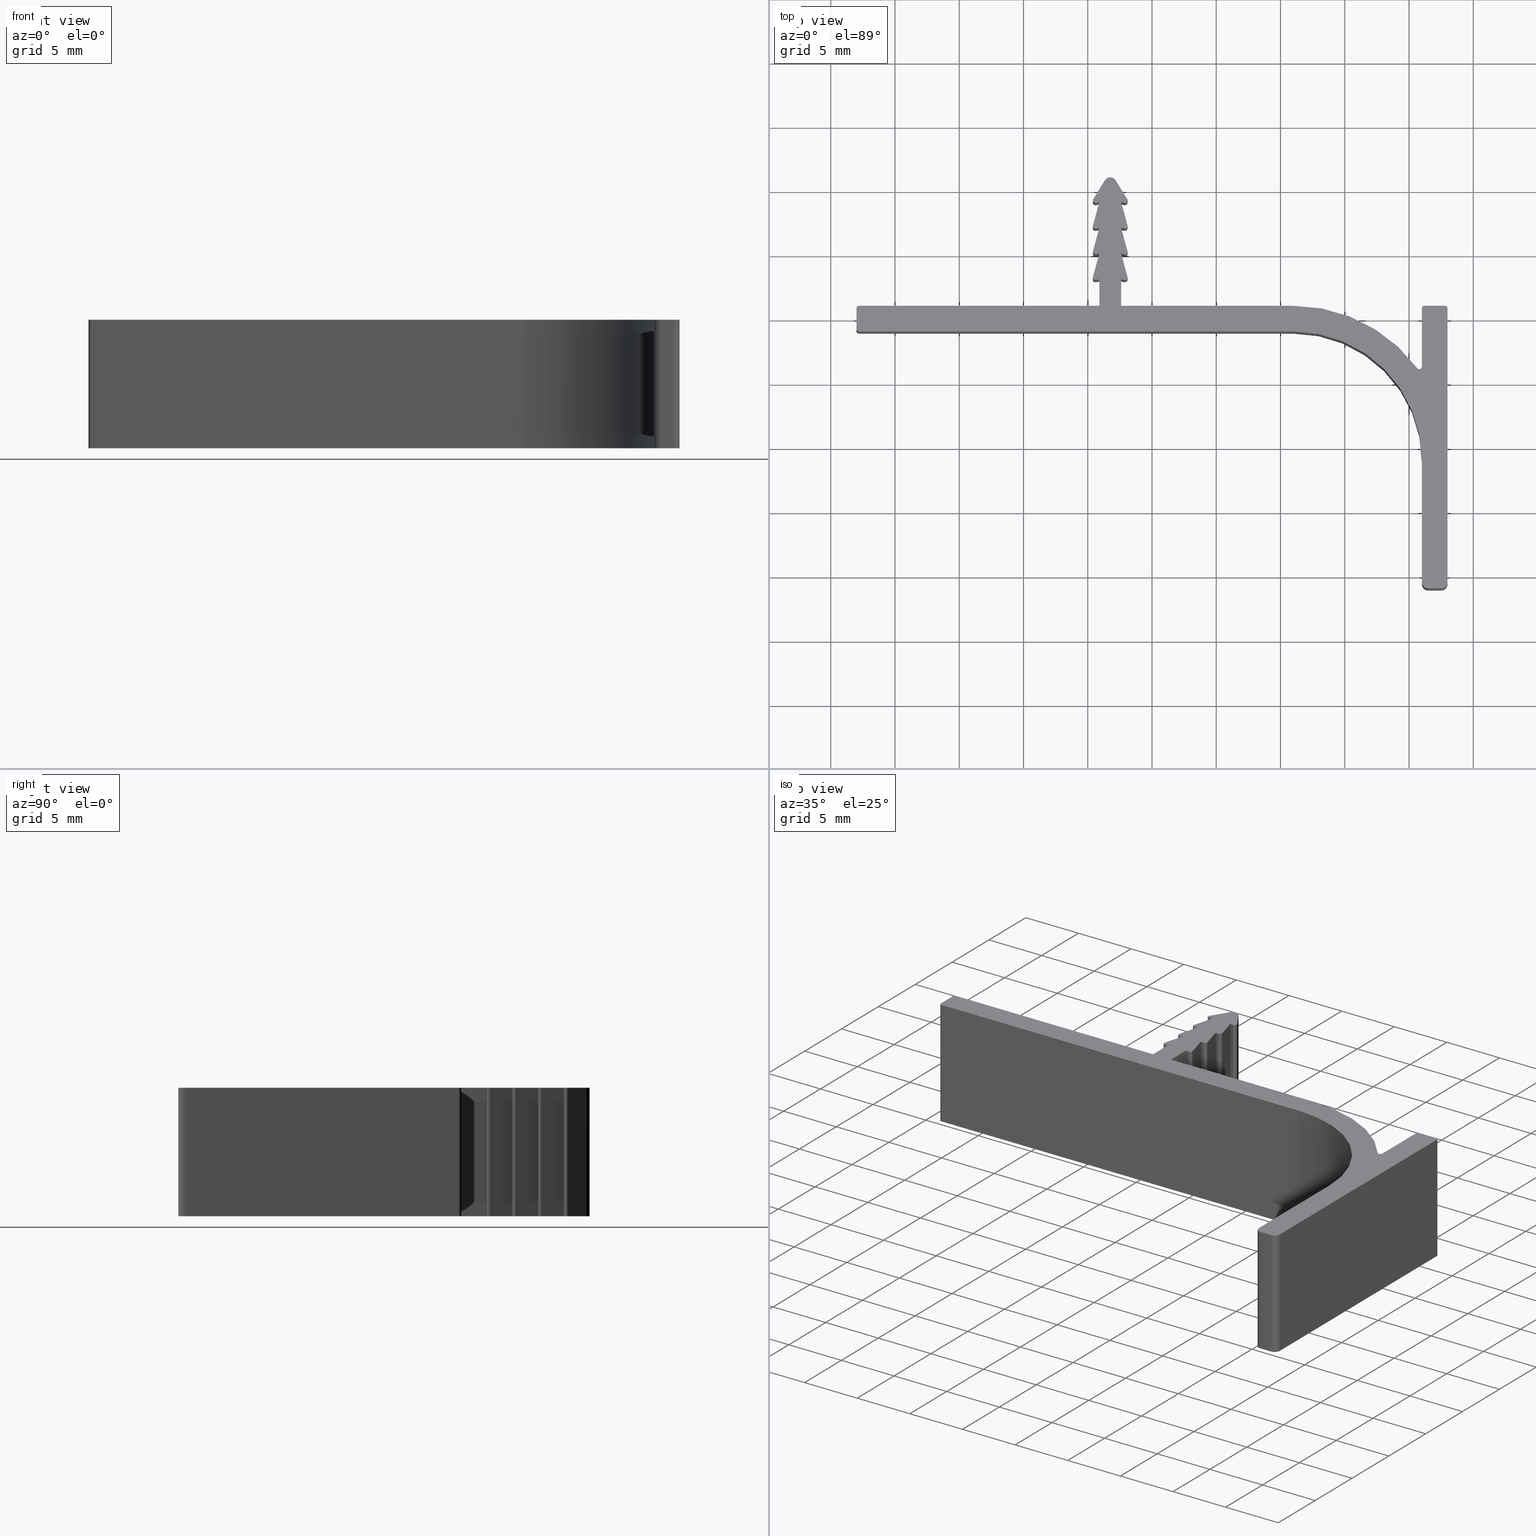
[diagram: canonical four-view strip — front | top / right | iso, engineering-drawing reading convention]
A machine part, canonical four-view strip (front | top / right | iso — engineering-drawing reading convention). The complete STEP part file that produces these views, byte-faithful:
ISO-10303-21;
HEADER;
/* Generated by software containing ST-Developer
 * from STEP Tools, Inc. (www.steptools.com) 
 */

FILE_DESCRIPTION(
/* description */ ('L-Profil senkrecht'),
/* implementation_level */ '2;1');

FILE_NAME(
/* name */ 'C:\\Users\\selema\\Desktop\\901009.stp',
/* time_stamp */ '2020-08-24T10:31:48+02:00',
/* author */ ('selema'),
/* organization */ (''),
/* preprocessor_version */ 'ST-DEVELOPER v15.6',
/* originating_system */ 'Autodesk Inventor 2015',
/* authorisation */ '');

FILE_SCHEMA (('AUTOMOTIVE_DESIGN { 1 0 10303 214 3 1 1 }'));
ENDSEC;

DATA;
#10=MECHANICAL_DESIGN_GEOMETRIC_PRESENTATION_REPRESENTATION('',(#13),#1560);
#11=SHAPE_REPRESENTATION_RELATIONSHIP('SRR','None',#1569,#12);
#12=ADVANCED_BREP_SHAPE_REPRESENTATION($,(#14),#1559);
#13=STYLED_ITEM('',(#1578),#14);
#14=MANIFOLD_SOLID_BREP('Volumenk\X\F6rper1',#932);
#15=PLANE('',#937);
#16=PLANE('',#938);
#17=PLANE('',#958);
#18=PLANE('',#959);
#19=PLANE('',#977);
#20=PLANE('',#980);
#21=PLANE('',#983);
#22=PLANE('',#985);
#23=PLANE('',#989);
#24=PLANE('',#990);
#25=PLANE('',#991);
#26=PLANE('',#993);
#27=PLANE('',#995);
#28=PLANE('',#997);
#29=PLANE('',#998);
#30=PLANE('',#1002);
#31=PLANE('',#1003);
#32=PLANE('',#1004);
#33=PLANE('',#1005);
#34=PLANE('',#1006);
#35=PLANE('',#1007);
#36=PLANE('',#1008);
#37=PLANE('',#1009);
#38=PLANE('',#1010);
#39=PLANE('',#1011);
#40=PLANE('',#1012);
#41=PLANE('',#1014);
#42=PLANE('',#1015);
#43=PLANE('',#1016);
#44=FACE_OUTER_BOUND('',#91,.T.);
#45=FACE_OUTER_BOUND('',#92,.T.);
#46=FACE_OUTER_BOUND('',#93,.T.);
#47=FACE_OUTER_BOUND('',#94,.T.);
#48=FACE_OUTER_BOUND('',#95,.T.);
#49=FACE_OUTER_BOUND('',#96,.T.);
#50=FACE_OUTER_BOUND('',#97,.T.);
#51=FACE_OUTER_BOUND('',#98,.T.);
#52=FACE_OUTER_BOUND('',#99,.T.);
#53=FACE_OUTER_BOUND('',#100,.T.);
#54=FACE_OUTER_BOUND('',#101,.T.);
#55=FACE_OUTER_BOUND('',#102,.T.);
#56=FACE_OUTER_BOUND('',#103,.T.);
#57=FACE_OUTER_BOUND('',#104,.T.);
#58=FACE_OUTER_BOUND('',#105,.T.);
#59=FACE_OUTER_BOUND('',#106,.T.);
#60=FACE_OUTER_BOUND('',#107,.T.);
#61=FACE_OUTER_BOUND('',#108,.T.);
#62=FACE_OUTER_BOUND('',#109,.T.);
#63=FACE_OUTER_BOUND('',#110,.T.);
#64=FACE_OUTER_BOUND('',#111,.T.);
#65=FACE_OUTER_BOUND('',#112,.T.);
#66=FACE_OUTER_BOUND('',#113,.T.);
#67=FACE_OUTER_BOUND('',#114,.T.);
#68=FACE_OUTER_BOUND('',#115,.T.);
#69=FACE_OUTER_BOUND('',#116,.T.);
#70=FACE_OUTER_BOUND('',#117,.T.);
#71=FACE_OUTER_BOUND('',#118,.T.);
#72=FACE_OUTER_BOUND('',#119,.T.);
#73=FACE_OUTER_BOUND('',#120,.T.);
#74=FACE_OUTER_BOUND('',#121,.T.);
#75=FACE_OUTER_BOUND('',#122,.T.);
#76=FACE_OUTER_BOUND('',#123,.T.);
#77=FACE_OUTER_BOUND('',#124,.T.);
#78=FACE_OUTER_BOUND('',#125,.T.);
#79=FACE_OUTER_BOUND('',#126,.T.);
#80=FACE_OUTER_BOUND('',#127,.T.);
#81=FACE_OUTER_BOUND('',#128,.T.);
#82=FACE_OUTER_BOUND('',#129,.T.);
#83=FACE_OUTER_BOUND('',#130,.T.);
#84=FACE_OUTER_BOUND('',#131,.T.);
#85=FACE_OUTER_BOUND('',#132,.T.);
#86=FACE_OUTER_BOUND('',#133,.T.);
#87=FACE_OUTER_BOUND('',#134,.T.);
#88=FACE_OUTER_BOUND('',#135,.T.);
#89=FACE_OUTER_BOUND('',#136,.T.);
#90=FACE_OUTER_BOUND('',#137,.T.);
#91=EDGE_LOOP('',(#597,#598,#599,#600));
#92=EDGE_LOOP('',(#601,#602,#603,#604));
#93=EDGE_LOOP('',(#605,#606,#607,#608,#609,#610,#611,#612,#613,#614,#615,
#616,#617,#618,#619,#620,#621,#622,#623,#624,#625,#626,#627,#628,#629,#630,
#631,#632,#633,#634,#635,#636,#637,#638,#639,#640,#641,#642,#643,#644,#645,
#646,#647,#648,#649));
#94=EDGE_LOOP('',(#650,#651,#652,#653));
#95=EDGE_LOOP('',(#654,#655,#656,#657));
#96=EDGE_LOOP('',(#658,#659,#660,#661,#662,#663,#664,#665,#666,#667,#668,
#669,#670,#671,#672,#673,#674,#675,#676,#677,#678,#679,#680,#681,#682,#683,
#684,#685,#686,#687,#688,#689,#690,#691,#692,#693,#694,#695,#696,#697,#698,
#699,#700,#701,#702));
#97=EDGE_LOOP('',(#703,#704,#705,#706));
#98=EDGE_LOOP('',(#707,#708,#709,#710));
#99=EDGE_LOOP('',(#711,#712,#713,#714));
#100=EDGE_LOOP('',(#715,#716,#717,#718));
#101=EDGE_LOOP('',(#719,#720,#721,#722));
#102=EDGE_LOOP('',(#723,#724,#725,#726));
#103=EDGE_LOOP('',(#727,#728,#729,#730));
#104=EDGE_LOOP('',(#731,#732,#733,#734));
#105=EDGE_LOOP('',(#735,#736,#737,#738));
#106=EDGE_LOOP('',(#739,#740,#741,#742));
#107=EDGE_LOOP('',(#743,#744,#745,#746));
#108=EDGE_LOOP('',(#747,#748,#749,#750));
#109=EDGE_LOOP('',(#751,#752,#753,#754));
#110=EDGE_LOOP('',(#755,#756,#757,#758));
#111=EDGE_LOOP('',(#759,#760,#761,#762));
#112=EDGE_LOOP('',(#763,#764,#765,#766));
#113=EDGE_LOOP('',(#767,#768,#769,#770));
#114=EDGE_LOOP('',(#771,#772,#773,#774));
#115=EDGE_LOOP('',(#775,#776,#777,#778));
#116=EDGE_LOOP('',(#779,#780,#781,#782));
#117=EDGE_LOOP('',(#783,#784,#785,#786));
#118=EDGE_LOOP('',(#787,#788,#789,#790));
#119=EDGE_LOOP('',(#791,#792,#793,#794));
#120=EDGE_LOOP('',(#795,#796,#797,#798));
#121=EDGE_LOOP('',(#799,#800,#801,#802));
#122=EDGE_LOOP('',(#803,#804,#805,#806));
#123=EDGE_LOOP('',(#807,#808,#809,#810));
#124=EDGE_LOOP('',(#811,#812,#813,#814));
#125=EDGE_LOOP('',(#815,#816,#817,#818));
#126=EDGE_LOOP('',(#819,#820,#821,#822));
#127=EDGE_LOOP('',(#823,#824,#825,#826));
#128=EDGE_LOOP('',(#827,#828,#829,#830));
#129=EDGE_LOOP('',(#831,#832,#833,#834));
#130=EDGE_LOOP('',(#835,#836,#837,#838));
#131=EDGE_LOOP('',(#839,#840,#841,#842));
#132=EDGE_LOOP('',(#843,#844,#845,#846));
#133=EDGE_LOOP('',(#847,#848,#849,#850));
#134=EDGE_LOOP('',(#851,#852,#853,#854));
#135=EDGE_LOOP('',(#855,#856,#857,#858));
#136=EDGE_LOOP('',(#859,#860,#861,#862));
#137=EDGE_LOOP('',(#863,#864,#865,#866));
#138=LINE('',#1290,#237);
#139=LINE('',#1293,#238);
#140=LINE('',#1296,#239);
#141=LINE('',#1298,#240);
#142=LINE('',#1299,#241);
#143=LINE('',#1302,#242);
#144=LINE('',#1306,#243);
#145=LINE('',#1310,#244);
#146=LINE('',#1314,#245);
#147=LINE('',#1318,#246);
#148=LINE('',#1322,#247);
#149=LINE('',#1324,#248);
#150=LINE('',#1326,#249);
#151=LINE('',#1330,#250);
#152=LINE('',#1332,#251);
#153=LINE('',#1336,#252);
#154=LINE('',#1338,#253);
#155=LINE('',#1342,#254);
#156=LINE('',#1344,#255);
#157=LINE('',#1348,#256);
#158=LINE('',#1352,#257);
#159=LINE('',#1356,#258);
#160=LINE('',#1358,#259);
#161=LINE('',#1362,#260);
#162=LINE('',#1364,#261);
#163=LINE('',#1368,#262);
#164=LINE('',#1370,#263);
#165=LINE('',#1374,#264);
#166=LINE('',#1376,#265);
#167=LINE('',#1378,#266);
#168=LINE('',#1384,#267);
#169=LINE('',#1388,#268);
#170=LINE('',#1391,#269);
#171=LINE('',#1394,#270);
#172=LINE('',#1395,#271);
#173=LINE('',#1400,#272);
#174=LINE('',#1406,#273);
#175=LINE('',#1408,#274);
#176=LINE('',#1410,#275);
#177=LINE('',#1414,#276);
#178=LINE('',#1416,#277);
#179=LINE('',#1420,#278);
#180=LINE('',#1422,#279);
#181=LINE('',#1426,#280);
#182=LINE('',#1428,#281);
#183=LINE('',#1432,#282);
#184=LINE('',#1436,#283);
#185=LINE('',#1440,#284);
#186=LINE('',#1442,#285);
#187=LINE('',#1446,#286);
#188=LINE('',#1448,#287);
#189=LINE('',#1452,#288);
#190=LINE('',#1454,#289);
#191=LINE('',#1458,#290);
#192=LINE('',#1459,#291);
#193=LINE('',#1461,#292);
#194=LINE('',#1465,#293);
#195=LINE('',#1469,#294);
#196=LINE('',#1473,#295);
#197=LINE('',#1476,#296);
#198=LINE('',#1478,#297);
#199=LINE('',#1479,#298);
#200=LINE('',#1481,#299);
#201=LINE('',#1483,#300);
#202=LINE('',#1485,#301);
#203=LINE('',#1487,#302);
#204=LINE('',#1489,#303);
#205=LINE('',#1491,#304);
#206=LINE('',#1492,#305);
#207=LINE('',#1494,#306);
#208=LINE('',#1496,#307);
#209=LINE('',#1498,#308);
#210=LINE('',#1500,#309);
#211=LINE('',#1501,#310);
#212=LINE('',#1503,#311);
#213=LINE('',#1504,#312);
#214=LINE('',#1506,#313);
#215=LINE('',#1507,#314);
#216=LINE('',#1509,#315);
#217=LINE('',#1511,#316);
#218=LINE('',#1513,#317);
#219=LINE('',#1514,#318);
#220=LINE('',#1517,#319);
#221=LINE('',#1519,#320);
#222=LINE('',#1520,#321);
#223=LINE('',#1522,#322);
#224=LINE('',#1523,#323);
#225=LINE('',#1526,#324);
#226=LINE('',#1527,#325);
#227=LINE('',#1529,#326);
#228=LINE('',#1531,#327);
#229=LINE('',#1532,#328);
#230=LINE('',#1534,#329);
#231=LINE('',#1536,#330);
#232=LINE('',#1539,#331);
#233=LINE('',#1542,#332);
#234=LINE('',#1545,#333);
#235=LINE('',#1548,#334);
#236=LINE('',#1553,#335);
#237=VECTOR('',#1023,10.);
#238=VECTOR('',#1026,10.);
#239=VECTOR('',#1029,1.6);
#240=VECTOR('',#1030,10.);
#241=VECTOR('',#1031,1.6);
#242=VECTOR('',#1034,21.3);
#243=VECTOR('',#1037,1.00000000000001);
#244=VECTOR('',#1040,9.49999999999999);
#245=VECTOR('',#1043,33.8);
#246=VECTOR('',#1046,1.6);
#247=VECTOR('',#1049,18.7);
#248=VECTOR('',#1050,2.07332952164733);
#249=VECTOR('',#1051,0.256993015636803);
#250=VECTOR('',#1054,1.88662754582757);
#251=VECTOR('',#1055,0.256993015636797);
#252=VECTOR('',#1058,1.88662754582758);
#253=VECTOR('',#1059,0.2569930156368);
#254=VECTOR('',#1062,1.88662754582757);
#255=VECTOR('',#1063,0.256993015636799);
#256=VECTOR('',#1066,1.70953209972788);
#257=VECTOR('',#1069,1.70953209972788);
#258=VECTOR('',#1072,0.256993015636797);
#259=VECTOR('',#1073,1.88662754582757);
#260=VECTOR('',#1076,0.2569930156368);
#261=VECTOR('',#1077,1.88662754582758);
#262=VECTOR('',#1080,0.256993015636797);
#263=VECTOR('',#1081,1.88662754582757);
#264=VECTOR('',#1084,0.256993015636797);
#265=VECTOR('',#1085,2.07332952164733);
#266=VECTOR('',#1086,13.4);
#267=VECTOR('',#1091,4.53363915016603);
#268=VECTOR('',#1096,10.);
#269=VECTOR('',#1099,10.);
#270=VECTOR('',#1102,18.7);
#271=VECTOR('',#1103,10.);
#272=VECTOR('',#1108,4.53363915016603);
#273=VECTOR('',#1113,13.4);
#274=VECTOR('',#1114,2.07332952164733);
#275=VECTOR('',#1115,0.256993015636798);
#276=VECTOR('',#1118,1.88662754582757);
#277=VECTOR('',#1119,0.256993015636797);
#278=VECTOR('',#1122,1.88662754582758);
#279=VECTOR('',#1123,0.256993015636799);
#280=VECTOR('',#1126,1.88662754582757);
#281=VECTOR('',#1127,0.256993015636797);
#282=VECTOR('',#1130,1.70953209972788);
#283=VECTOR('',#1133,1.70953209972788);
#284=VECTOR('',#1136,0.256993015636799);
#285=VECTOR('',#1137,1.88662754582757);
#286=VECTOR('',#1140,0.256993015636799);
#287=VECTOR('',#1141,1.88662754582758);
#288=VECTOR('',#1144,0.256993015636797);
#289=VECTOR('',#1145,1.88662754582757);
#290=VECTOR('',#1148,0.256993015636803);
#291=VECTOR('',#1149,2.07332952164733);
#292=VECTOR('',#1150,1.6);
#293=VECTOR('',#1153,33.8);
#294=VECTOR('',#1156,9.49999999999999);
#295=VECTOR('',#1159,1.00000000000001);
#296=VECTOR('',#1162,21.3);
#297=VECTOR('',#1165,10.);
#298=VECTOR('',#1166,10.);
#299=VECTOR('',#1169,10.);
#300=VECTOR('',#1172,10.);
#301=VECTOR('',#1175,10.);
#302=VECTOR('',#1178,10.);
#303=VECTOR('',#1181,10.);
#304=VECTOR('',#1184,10.);
#305=VECTOR('',#1185,10.);
#306=VECTOR('',#1188,10.);
#307=VECTOR('',#1191,10.);
#308=VECTOR('',#1194,10.);
#309=VECTOR('',#1197,10.);
#310=VECTOR('',#1198,10.);
#311=VECTOR('',#1201,10.);
#312=VECTOR('',#1202,10.);
#313=VECTOR('',#1205,10.);
#314=VECTOR('',#1206,10.);
#315=VECTOR('',#1209,10.);
#316=VECTOR('',#1212,10.);
#317=VECTOR('',#1215,10.);
#318=VECTOR('',#1216,10.);
#319=VECTOR('',#1221,10.);
#320=VECTOR('',#1224,10.);
#321=VECTOR('',#1225,10.);
#322=VECTOR('',#1228,10.);
#323=VECTOR('',#1229,10.);
#324=VECTOR('',#1234,10.);
#325=VECTOR('',#1235,10.);
#326=VECTOR('',#1238,10.);
#327=VECTOR('',#1241,10.);
#328=VECTOR('',#1242,10.);
#329=VECTOR('',#1245,10.);
#330=VECTOR('',#1248,10.);
#331=VECTOR('',#1253,10.);
#332=VECTOR('',#1258,10.);
#333=VECTOR('',#1263,10.);
#334=VECTOR('',#1268,10.);
#335=VECTOR('',#1277,10.);
#336=CIRCLE('',#935,0.2);
#337=CIRCLE('',#936,0.2);
#338=CIRCLE('',#939,0.5);
#339=CIRCLE('',#940,0.5);
#340=CIRCLE('',#941,10.);
#341=CIRCLE('',#942,0.2);
#342=CIRCLE('',#943,0.2);
#343=CIRCLE('',#944,0.2);
#344=CIRCLE('',#945,0.2);
#345=CIRCLE('',#946,0.2);
#346=CIRCLE('',#947,0.2);
#347=CIRCLE('',#948,0.5);
#348=CIRCLE('',#949,0.2);
#349=CIRCLE('',#950,0.2);
#350=CIRCLE('',#951,0.2);
#351=CIRCLE('',#952,0.2);
#352=CIRCLE('',#953,12.);
#353=CIRCLE('',#954,0.2);
#354=CIRCLE('',#955,0.2);
#355=CIRCLE('',#957,0.2);
#356=CIRCLE('',#960,0.2);
#357=CIRCLE('',#961,0.2);
#358=CIRCLE('',#962,12.);
#359=CIRCLE('',#963,0.2);
#360=CIRCLE('',#964,0.2);
#361=CIRCLE('',#965,0.2);
#362=CIRCLE('',#966,0.2);
#363=CIRCLE('',#967,0.5);
#364=CIRCLE('',#968,0.2);
#365=CIRCLE('',#969,0.2);
#366=CIRCLE('',#970,0.2);
#367=CIRCLE('',#971,0.2);
#368=CIRCLE('',#972,0.2);
#369=CIRCLE('',#973,10.);
#370=CIRCLE('',#974,0.5);
#371=CIRCLE('',#975,0.5);
#372=VERTEX_POINT('',#1286);
#373=VERTEX_POINT('',#1287);
#374=VERTEX_POINT('',#1289);
#375=VERTEX_POINT('',#1291);
#376=VERTEX_POINT('',#1295);
#377=VERTEX_POINT('',#1297);
#378=VERTEX_POINT('',#1301);
#379=VERTEX_POINT('',#1303);
#380=VERTEX_POINT('',#1305);
#381=VERTEX_POINT('',#1307);
#382=VERTEX_POINT('',#1309);
#383=VERTEX_POINT('',#1311);
#384=VERTEX_POINT('',#1313);
#385=VERTEX_POINT('',#1315);
#386=VERTEX_POINT('',#1317);
#387=VERTEX_POINT('',#1319);
#388=VERTEX_POINT('',#1321);
#389=VERTEX_POINT('',#1323);
#390=VERTEX_POINT('',#1325);
#391=VERTEX_POINT('',#1327);
#392=VERTEX_POINT('',#1329);
#393=VERTEX_POINT('',#1331);
#394=VERTEX_POINT('',#1333);
#395=VERTEX_POINT('',#1335);
#396=VERTEX_POINT('',#1337);
#397=VERTEX_POINT('',#1339);
#398=VERTEX_POINT('',#1341);
#399=VERTEX_POINT('',#1343);
#400=VERTEX_POINT('',#1345);
#401=VERTEX_POINT('',#1347);
#402=VERTEX_POINT('',#1349);
#403=VERTEX_POINT('',#1351);
#404=VERTEX_POINT('',#1353);
#405=VERTEX_POINT('',#1355);
#406=VERTEX_POINT('',#1357);
#407=VERTEX_POINT('',#1359);
#408=VERTEX_POINT('',#1361);
#409=VERTEX_POINT('',#1363);
#410=VERTEX_POINT('',#1365);
#411=VERTEX_POINT('',#1367);
#412=VERTEX_POINT('',#1369);
#413=VERTEX_POINT('',#1371);
#414=VERTEX_POINT('',#1373);
#415=VERTEX_POINT('',#1375);
#416=VERTEX_POINT('',#1377);
#417=VERTEX_POINT('',#1379);
#418=VERTEX_POINT('',#1381);
#419=VERTEX_POINT('',#1383);
#420=VERTEX_POINT('',#1387);
#421=VERTEX_POINT('',#1389);
#422=VERTEX_POINT('',#1393);
#423=VERTEX_POINT('',#1397);
#424=VERTEX_POINT('',#1399);
#425=VERTEX_POINT('',#1401);
#426=VERTEX_POINT('',#1403);
#427=VERTEX_POINT('',#1405);
#428=VERTEX_POINT('',#1407);
#429=VERTEX_POINT('',#1409);
#430=VERTEX_POINT('',#1411);
#431=VERTEX_POINT('',#1413);
#432=VERTEX_POINT('',#1415);
#433=VERTEX_POINT('',#1417);
#434=VERTEX_POINT('',#1419);
#435=VERTEX_POINT('',#1421);
#436=VERTEX_POINT('',#1423);
#437=VERTEX_POINT('',#1425);
#438=VERTEX_POINT('',#1427);
#439=VERTEX_POINT('',#1429);
#440=VERTEX_POINT('',#1431);
#441=VERTEX_POINT('',#1433);
#442=VERTEX_POINT('',#1435);
#443=VERTEX_POINT('',#1437);
#444=VERTEX_POINT('',#1439);
#445=VERTEX_POINT('',#1441);
#446=VERTEX_POINT('',#1443);
#447=VERTEX_POINT('',#1445);
#448=VERTEX_POINT('',#1447);
#449=VERTEX_POINT('',#1449);
#450=VERTEX_POINT('',#1451);
#451=VERTEX_POINT('',#1453);
#452=VERTEX_POINT('',#1455);
#453=VERTEX_POINT('',#1457);
#454=VERTEX_POINT('',#1460);
#455=VERTEX_POINT('',#1462);
#456=VERTEX_POINT('',#1464);
#457=VERTEX_POINT('',#1466);
#458=VERTEX_POINT('',#1468);
#459=VERTEX_POINT('',#1470);
#460=VERTEX_POINT('',#1472);
#461=VERTEX_POINT('',#1474);
#462=EDGE_CURVE('',#372,#373,#336,.T.);
#463=EDGE_CURVE('',#373,#374,#138,.T.);
#464=EDGE_CURVE('',#374,#375,#337,.T.);
#465=EDGE_CURVE('',#375,#372,#139,.T.);
#466=EDGE_CURVE('',#376,#375,#140,.T.);
#467=EDGE_CURVE('',#377,#376,#141,.T.);
#468=EDGE_CURVE('',#372,#377,#142,.T.);
#469=EDGE_CURVE('',#378,#374,#143,.T.);
#470=EDGE_CURVE('',#379,#378,#338,.T.);
#471=EDGE_CURVE('',#380,#379,#144,.T.);
#472=EDGE_CURVE('',#381,#380,#339,.T.);
#473=EDGE_CURVE('',#382,#381,#145,.T.);
#474=EDGE_CURVE('',#383,#382,#340,.T.);
#475=EDGE_CURVE('',#384,#383,#146,.T.);
#476=EDGE_CURVE('',#385,#384,#341,.T.);
#477=EDGE_CURVE('',#386,#385,#147,.T.);
#478=EDGE_CURVE('',#387,#386,#342,.T.);
#479=EDGE_CURVE('',#387,#388,#148,.T.);
#480=EDGE_CURVE('',#388,#389,#149,.T.);
#481=EDGE_CURVE('',#389,#390,#150,.T.);
#482=EDGE_CURVE('',#390,#391,#343,.T.);
#483=EDGE_CURVE('',#391,#392,#151,.T.);
#484=EDGE_CURVE('',#392,#393,#152,.T.);
#485=EDGE_CURVE('',#393,#394,#344,.T.);
#486=EDGE_CURVE('',#394,#395,#153,.T.);
#487=EDGE_CURVE('',#395,#396,#154,.T.);
#488=EDGE_CURVE('',#396,#397,#345,.T.);
#489=EDGE_CURVE('',#397,#398,#155,.T.);
#490=EDGE_CURVE('',#398,#399,#156,.T.);
#491=EDGE_CURVE('',#399,#400,#346,.T.);
#492=EDGE_CURVE('',#400,#401,#157,.T.);
#493=EDGE_CURVE('',#401,#402,#347,.T.);
#494=EDGE_CURVE('',#402,#403,#158,.T.);
#495=EDGE_CURVE('',#403,#404,#348,.T.);
#496=EDGE_CURVE('',#404,#405,#159,.T.);
#497=EDGE_CURVE('',#405,#406,#160,.T.);
#498=EDGE_CURVE('',#406,#407,#349,.T.);
#499=EDGE_CURVE('',#407,#408,#161,.T.);
#500=EDGE_CURVE('',#408,#409,#162,.T.);
#501=EDGE_CURVE('',#409,#410,#350,.T.);
#502=EDGE_CURVE('',#410,#411,#163,.T.);
#503=EDGE_CURVE('',#411,#412,#164,.T.);
#504=EDGE_CURVE('',#412,#413,#351,.T.);
#505=EDGE_CURVE('',#413,#414,#165,.T.);
#506=EDGE_CURVE('',#414,#415,#166,.T.);
#507=EDGE_CURVE('',#415,#416,#167,.T.);
#508=EDGE_CURVE('',#416,#417,#352,.T.);
#509=EDGE_CURVE('',#418,#417,#353,.T.);
#510=EDGE_CURVE('',#418,#419,#168,.T.);
#511=EDGE_CURVE('',#376,#419,#354,.T.);
#512=EDGE_CURVE('',#386,#420,#169,.T.);
#513=EDGE_CURVE('',#420,#421,#355,.T.);
#514=EDGE_CURVE('',#421,#387,#170,.T.);
#515=EDGE_CURVE('',#422,#421,#171,.T.);
#516=EDGE_CURVE('',#422,#388,#172,.T.);
#517=EDGE_CURVE('',#423,#377,#356,.T.);
#518=EDGE_CURVE('',#423,#424,#173,.T.);
#519=EDGE_CURVE('',#425,#424,#357,.T.);
#520=EDGE_CURVE('',#425,#426,#358,.T.);
#521=EDGE_CURVE('',#426,#427,#174,.T.);
#522=EDGE_CURVE('',#427,#428,#175,.T.);
#523=EDGE_CURVE('',#428,#429,#176,.T.);
#524=EDGE_CURVE('',#429,#430,#359,.T.);
#525=EDGE_CURVE('',#430,#431,#177,.T.);
#526=EDGE_CURVE('',#431,#432,#178,.T.);
#527=EDGE_CURVE('',#432,#433,#360,.T.);
#528=EDGE_CURVE('',#433,#434,#179,.T.);
#529=EDGE_CURVE('',#434,#435,#180,.T.);
#530=EDGE_CURVE('',#435,#436,#361,.T.);
#531=EDGE_CURVE('',#436,#437,#181,.T.);
#532=EDGE_CURVE('',#437,#438,#182,.T.);
#533=EDGE_CURVE('',#438,#439,#362,.T.);
#534=EDGE_CURVE('',#439,#440,#183,.T.);
#535=EDGE_CURVE('',#440,#441,#363,.T.);
#536=EDGE_CURVE('',#441,#442,#184,.T.);
#537=EDGE_CURVE('',#442,#443,#364,.T.);
#538=EDGE_CURVE('',#443,#444,#185,.T.);
#539=EDGE_CURVE('',#444,#445,#186,.T.);
#540=EDGE_CURVE('',#445,#446,#365,.T.);
#541=EDGE_CURVE('',#446,#447,#187,.T.);
#542=EDGE_CURVE('',#447,#448,#188,.T.);
#543=EDGE_CURVE('',#448,#449,#366,.T.);
#544=EDGE_CURVE('',#449,#450,#189,.T.);
#545=EDGE_CURVE('',#450,#451,#190,.T.);
#546=EDGE_CURVE('',#451,#452,#367,.T.);
#547=EDGE_CURVE('',#452,#453,#191,.T.);
#548=EDGE_CURVE('',#453,#422,#192,.T.);
#549=EDGE_CURVE('',#454,#420,#193,.T.);
#550=EDGE_CURVE('',#455,#454,#368,.T.);
#551=EDGE_CURVE('',#456,#455,#194,.T.);
#552=EDGE_CURVE('',#457,#456,#369,.T.);
#553=EDGE_CURVE('',#458,#457,#195,.T.);
#554=EDGE_CURVE('',#459,#458,#370,.T.);
#555=EDGE_CURVE('',#460,#459,#196,.T.);
#556=EDGE_CURVE('',#461,#460,#371,.T.);
#557=EDGE_CURVE('',#373,#461,#197,.T.);
#558=EDGE_CURVE('',#460,#379,#198,.T.);
#559=EDGE_CURVE('',#378,#461,#199,.T.);
#560=EDGE_CURVE('',#380,#459,#200,.T.);
#561=EDGE_CURVE('',#458,#381,#201,.T.);
#562=EDGE_CURVE('',#419,#423,#202,.T.);
#563=EDGE_CURVE('',#424,#418,#203,.T.);
#564=EDGE_CURVE('',#417,#425,#204,.T.);
#565=EDGE_CURVE('',#454,#385,#205,.T.);
#566=EDGE_CURVE('',#384,#455,#206,.T.);
#567=EDGE_CURVE('',#456,#383,#207,.T.);
#568=EDGE_CURVE('',#416,#426,#208,.T.);
#569=EDGE_CURVE('',#427,#415,#209,.T.);
#570=EDGE_CURVE('',#430,#412,#210,.T.);
#571=EDGE_CURVE('',#429,#413,#211,.T.);
#572=EDGE_CURVE('',#433,#409,#212,.T.);
#573=EDGE_CURVE('',#432,#410,#213,.T.);
#574=EDGE_CURVE('',#436,#406,#214,.T.);
#575=EDGE_CURVE('',#435,#407,#215,.T.);
#576=EDGE_CURVE('',#453,#389,#216,.T.);
#577=EDGE_CURVE('',#452,#390,#217,.T.);
#578=EDGE_CURVE('',#451,#391,#218,.T.);
#579=EDGE_CURVE('',#450,#392,#219,.T.);
#580=EDGE_CURVE('',#449,#393,#220,.T.);
#581=EDGE_CURVE('',#439,#403,#221,.T.);
#582=EDGE_CURVE('',#438,#404,#222,.T.);
#583=EDGE_CURVE('',#448,#394,#223,.T.);
#584=EDGE_CURVE('',#447,#395,#224,.T.);
#585=EDGE_CURVE('',#444,#398,#225,.T.);
#586=EDGE_CURVE('',#443,#399,#226,.T.);
#587=EDGE_CURVE('',#446,#396,#227,.T.);
#588=EDGE_CURVE('',#441,#401,#228,.T.);
#589=EDGE_CURVE('',#440,#402,#229,.T.);
#590=EDGE_CURVE('',#442,#400,#230,.T.);
#591=EDGE_CURVE('',#445,#397,#231,.T.);
#592=EDGE_CURVE('',#437,#405,#232,.T.);
#593=EDGE_CURVE('',#434,#408,#233,.T.);
#594=EDGE_CURVE('',#431,#411,#234,.T.);
#595=EDGE_CURVE('',#428,#414,#235,.T.);
#596=EDGE_CURVE('',#382,#457,#236,.T.);
#597=ORIENTED_EDGE('',*,*,#462,.T.);
#598=ORIENTED_EDGE('',*,*,#463,.T.);
#599=ORIENTED_EDGE('',*,*,#464,.T.);
#600=ORIENTED_EDGE('',*,*,#465,.T.);
#601=ORIENTED_EDGE('',*,*,#465,.F.);
#602=ORIENTED_EDGE('',*,*,#466,.F.);
#603=ORIENTED_EDGE('',*,*,#467,.F.);
#604=ORIENTED_EDGE('',*,*,#468,.F.);
#605=ORIENTED_EDGE('',*,*,#464,.F.);
#606=ORIENTED_EDGE('',*,*,#469,.F.);
#607=ORIENTED_EDGE('',*,*,#470,.F.);
#608=ORIENTED_EDGE('',*,*,#471,.F.);
#609=ORIENTED_EDGE('',*,*,#472,.F.);
#610=ORIENTED_EDGE('',*,*,#473,.F.);
#611=ORIENTED_EDGE('',*,*,#474,.F.);
#612=ORIENTED_EDGE('',*,*,#475,.F.);
#613=ORIENTED_EDGE('',*,*,#476,.F.);
#614=ORIENTED_EDGE('',*,*,#477,.F.);
#615=ORIENTED_EDGE('',*,*,#478,.F.);
#616=ORIENTED_EDGE('',*,*,#479,.T.);
#617=ORIENTED_EDGE('',*,*,#480,.T.);
#618=ORIENTED_EDGE('',*,*,#481,.T.);
#619=ORIENTED_EDGE('',*,*,#482,.T.);
#620=ORIENTED_EDGE('',*,*,#483,.T.);
#621=ORIENTED_EDGE('',*,*,#484,.T.);
#622=ORIENTED_EDGE('',*,*,#485,.T.);
#623=ORIENTED_EDGE('',*,*,#486,.T.);
#624=ORIENTED_EDGE('',*,*,#487,.T.);
#625=ORIENTED_EDGE('',*,*,#488,.T.);
#626=ORIENTED_EDGE('',*,*,#489,.T.);
#627=ORIENTED_EDGE('',*,*,#490,.T.);
#628=ORIENTED_EDGE('',*,*,#491,.T.);
#629=ORIENTED_EDGE('',*,*,#492,.T.);
#630=ORIENTED_EDGE('',*,*,#493,.T.);
#631=ORIENTED_EDGE('',*,*,#494,.T.);
#632=ORIENTED_EDGE('',*,*,#495,.T.);
#633=ORIENTED_EDGE('',*,*,#496,.T.);
#634=ORIENTED_EDGE('',*,*,#497,.T.);
#635=ORIENTED_EDGE('',*,*,#498,.T.);
#636=ORIENTED_EDGE('',*,*,#499,.T.);
#637=ORIENTED_EDGE('',*,*,#500,.T.);
#638=ORIENTED_EDGE('',*,*,#501,.T.);
#639=ORIENTED_EDGE('',*,*,#502,.T.);
#640=ORIENTED_EDGE('',*,*,#503,.T.);
#641=ORIENTED_EDGE('',*,*,#504,.T.);
#642=ORIENTED_EDGE('',*,*,#505,.T.);
#643=ORIENTED_EDGE('',*,*,#506,.T.);
#644=ORIENTED_EDGE('',*,*,#507,.T.);
#645=ORIENTED_EDGE('',*,*,#508,.T.);
#646=ORIENTED_EDGE('',*,*,#509,.F.);
#647=ORIENTED_EDGE('',*,*,#510,.T.);
#648=ORIENTED_EDGE('',*,*,#511,.F.);
#649=ORIENTED_EDGE('',*,*,#466,.T.);
#650=ORIENTED_EDGE('',*,*,#478,.T.);
#651=ORIENTED_EDGE('',*,*,#512,.T.);
#652=ORIENTED_EDGE('',*,*,#513,.T.);
#653=ORIENTED_EDGE('',*,*,#514,.T.);
#654=ORIENTED_EDGE('',*,*,#514,.F.);
#655=ORIENTED_EDGE('',*,*,#515,.F.);
#656=ORIENTED_EDGE('',*,*,#516,.T.);
#657=ORIENTED_EDGE('',*,*,#479,.F.);
#658=ORIENTED_EDGE('',*,*,#462,.F.);
#659=ORIENTED_EDGE('',*,*,#468,.T.);
#660=ORIENTED_EDGE('',*,*,#517,.F.);
#661=ORIENTED_EDGE('',*,*,#518,.T.);
#662=ORIENTED_EDGE('',*,*,#519,.F.);
#663=ORIENTED_EDGE('',*,*,#520,.T.);
#664=ORIENTED_EDGE('',*,*,#521,.T.);
#665=ORIENTED_EDGE('',*,*,#522,.T.);
#666=ORIENTED_EDGE('',*,*,#523,.T.);
#667=ORIENTED_EDGE('',*,*,#524,.T.);
#668=ORIENTED_EDGE('',*,*,#525,.T.);
#669=ORIENTED_EDGE('',*,*,#526,.T.);
#670=ORIENTED_EDGE('',*,*,#527,.T.);
#671=ORIENTED_EDGE('',*,*,#528,.T.);
#672=ORIENTED_EDGE('',*,*,#529,.T.);
#673=ORIENTED_EDGE('',*,*,#530,.T.);
#674=ORIENTED_EDGE('',*,*,#531,.T.);
#675=ORIENTED_EDGE('',*,*,#532,.T.);
#676=ORIENTED_EDGE('',*,*,#533,.T.);
#677=ORIENTED_EDGE('',*,*,#534,.T.);
#678=ORIENTED_EDGE('',*,*,#535,.T.);
#679=ORIENTED_EDGE('',*,*,#536,.T.);
#680=ORIENTED_EDGE('',*,*,#537,.T.);
#681=ORIENTED_EDGE('',*,*,#538,.T.);
#682=ORIENTED_EDGE('',*,*,#539,.T.);
#683=ORIENTED_EDGE('',*,*,#540,.T.);
#684=ORIENTED_EDGE('',*,*,#541,.T.);
#685=ORIENTED_EDGE('',*,*,#542,.T.);
#686=ORIENTED_EDGE('',*,*,#543,.T.);
#687=ORIENTED_EDGE('',*,*,#544,.T.);
#688=ORIENTED_EDGE('',*,*,#545,.T.);
#689=ORIENTED_EDGE('',*,*,#546,.T.);
#690=ORIENTED_EDGE('',*,*,#547,.T.);
#691=ORIENTED_EDGE('',*,*,#548,.T.);
#692=ORIENTED_EDGE('',*,*,#515,.T.);
#693=ORIENTED_EDGE('',*,*,#513,.F.);
#694=ORIENTED_EDGE('',*,*,#549,.F.);
#695=ORIENTED_EDGE('',*,*,#550,.F.);
#696=ORIENTED_EDGE('',*,*,#551,.F.);
#697=ORIENTED_EDGE('',*,*,#552,.F.);
#698=ORIENTED_EDGE('',*,*,#553,.F.);
#699=ORIENTED_EDGE('',*,*,#554,.F.);
#700=ORIENTED_EDGE('',*,*,#555,.F.);
#701=ORIENTED_EDGE('',*,*,#556,.F.);
#702=ORIENTED_EDGE('',*,*,#557,.F.);
#703=ORIENTED_EDGE('',*,*,#556,.T.);
#704=ORIENTED_EDGE('',*,*,#558,.T.);
#705=ORIENTED_EDGE('',*,*,#470,.T.);
#706=ORIENTED_EDGE('',*,*,#559,.T.);
#707=ORIENTED_EDGE('',*,*,#558,.F.);
#708=ORIENTED_EDGE('',*,*,#555,.T.);
#709=ORIENTED_EDGE('',*,*,#560,.F.);
#710=ORIENTED_EDGE('',*,*,#471,.T.);
#711=ORIENTED_EDGE('',*,*,#554,.T.);
#712=ORIENTED_EDGE('',*,*,#561,.T.);
#713=ORIENTED_EDGE('',*,*,#472,.T.);
#714=ORIENTED_EDGE('',*,*,#560,.T.);
#715=ORIENTED_EDGE('',*,*,#517,.T.);
#716=ORIENTED_EDGE('',*,*,#467,.T.);
#717=ORIENTED_EDGE('',*,*,#511,.T.);
#718=ORIENTED_EDGE('',*,*,#562,.T.);
#719=ORIENTED_EDGE('',*,*,#562,.F.);
#720=ORIENTED_EDGE('',*,*,#510,.F.);
#721=ORIENTED_EDGE('',*,*,#563,.F.);
#722=ORIENTED_EDGE('',*,*,#518,.F.);
#723=ORIENTED_EDGE('',*,*,#519,.T.);
#724=ORIENTED_EDGE('',*,*,#563,.T.);
#725=ORIENTED_EDGE('',*,*,#509,.T.);
#726=ORIENTED_EDGE('',*,*,#564,.T.);
#727=ORIENTED_EDGE('',*,*,#550,.T.);
#728=ORIENTED_EDGE('',*,*,#565,.T.);
#729=ORIENTED_EDGE('',*,*,#476,.T.);
#730=ORIENTED_EDGE('',*,*,#566,.T.);
#731=ORIENTED_EDGE('',*,*,#566,.F.);
#732=ORIENTED_EDGE('',*,*,#475,.T.);
#733=ORIENTED_EDGE('',*,*,#567,.F.);
#734=ORIENTED_EDGE('',*,*,#551,.T.);
#735=ORIENTED_EDGE('',*,*,#564,.F.);
#736=ORIENTED_EDGE('',*,*,#508,.F.);
#737=ORIENTED_EDGE('',*,*,#568,.T.);
#738=ORIENTED_EDGE('',*,*,#520,.F.);
#739=ORIENTED_EDGE('',*,*,#568,.F.);
#740=ORIENTED_EDGE('',*,*,#507,.F.);
#741=ORIENTED_EDGE('',*,*,#569,.F.);
#742=ORIENTED_EDGE('',*,*,#521,.F.);
#743=ORIENTED_EDGE('',*,*,#504,.F.);
#744=ORIENTED_EDGE('',*,*,#570,.F.);
#745=ORIENTED_EDGE('',*,*,#524,.F.);
#746=ORIENTED_EDGE('',*,*,#571,.T.);
#747=ORIENTED_EDGE('',*,*,#501,.F.);
#748=ORIENTED_EDGE('',*,*,#572,.F.);
#749=ORIENTED_EDGE('',*,*,#527,.F.);
#750=ORIENTED_EDGE('',*,*,#573,.T.);
#751=ORIENTED_EDGE('',*,*,#498,.F.);
#752=ORIENTED_EDGE('',*,*,#574,.F.);
#753=ORIENTED_EDGE('',*,*,#530,.F.);
#754=ORIENTED_EDGE('',*,*,#575,.T.);
#755=ORIENTED_EDGE('',*,*,#480,.F.);
#756=ORIENTED_EDGE('',*,*,#516,.F.);
#757=ORIENTED_EDGE('',*,*,#548,.F.);
#758=ORIENTED_EDGE('',*,*,#576,.T.);
#759=ORIENTED_EDGE('',*,*,#481,.F.);
#760=ORIENTED_EDGE('',*,*,#576,.F.);
#761=ORIENTED_EDGE('',*,*,#547,.F.);
#762=ORIENTED_EDGE('',*,*,#577,.T.);
#763=ORIENTED_EDGE('',*,*,#483,.F.);
#764=ORIENTED_EDGE('',*,*,#578,.F.);
#765=ORIENTED_EDGE('',*,*,#545,.F.);
#766=ORIENTED_EDGE('',*,*,#579,.T.);
#767=ORIENTED_EDGE('',*,*,#482,.F.);
#768=ORIENTED_EDGE('',*,*,#577,.F.);
#769=ORIENTED_EDGE('',*,*,#546,.F.);
#770=ORIENTED_EDGE('',*,*,#578,.T.);
#771=ORIENTED_EDGE('',*,*,#484,.F.);
#772=ORIENTED_EDGE('',*,*,#579,.F.);
#773=ORIENTED_EDGE('',*,*,#544,.F.);
#774=ORIENTED_EDGE('',*,*,#580,.T.);
#775=ORIENTED_EDGE('',*,*,#495,.F.);
#776=ORIENTED_EDGE('',*,*,#581,.F.);
#777=ORIENTED_EDGE('',*,*,#533,.F.);
#778=ORIENTED_EDGE('',*,*,#582,.T.);
#779=ORIENTED_EDGE('',*,*,#486,.F.);
#780=ORIENTED_EDGE('',*,*,#583,.F.);
#781=ORIENTED_EDGE('',*,*,#542,.F.);
#782=ORIENTED_EDGE('',*,*,#584,.T.);
#783=ORIENTED_EDGE('',*,*,#485,.F.);
#784=ORIENTED_EDGE('',*,*,#580,.F.);
#785=ORIENTED_EDGE('',*,*,#543,.F.);
#786=ORIENTED_EDGE('',*,*,#583,.T.);
#787=ORIENTED_EDGE('',*,*,#490,.F.);
#788=ORIENTED_EDGE('',*,*,#585,.F.);
#789=ORIENTED_EDGE('',*,*,#538,.F.);
#790=ORIENTED_EDGE('',*,*,#586,.T.);
#791=ORIENTED_EDGE('',*,*,#487,.F.);
#792=ORIENTED_EDGE('',*,*,#584,.F.);
#793=ORIENTED_EDGE('',*,*,#541,.F.);
#794=ORIENTED_EDGE('',*,*,#587,.T.);
#795=ORIENTED_EDGE('',*,*,#493,.F.);
#796=ORIENTED_EDGE('',*,*,#588,.F.);
#797=ORIENTED_EDGE('',*,*,#535,.F.);
#798=ORIENTED_EDGE('',*,*,#589,.T.);
#799=ORIENTED_EDGE('',*,*,#491,.F.);
#800=ORIENTED_EDGE('',*,*,#586,.F.);
#801=ORIENTED_EDGE('',*,*,#537,.F.);
#802=ORIENTED_EDGE('',*,*,#590,.T.);
#803=ORIENTED_EDGE('',*,*,#488,.F.);
#804=ORIENTED_EDGE('',*,*,#587,.F.);
#805=ORIENTED_EDGE('',*,*,#540,.F.);
#806=ORIENTED_EDGE('',*,*,#591,.T.);
#807=ORIENTED_EDGE('',*,*,#494,.F.);
#808=ORIENTED_EDGE('',*,*,#589,.F.);
#809=ORIENTED_EDGE('',*,*,#534,.F.);
#810=ORIENTED_EDGE('',*,*,#581,.T.);
#811=ORIENTED_EDGE('',*,*,#496,.F.);
#812=ORIENTED_EDGE('',*,*,#582,.F.);
#813=ORIENTED_EDGE('',*,*,#532,.F.);
#814=ORIENTED_EDGE('',*,*,#592,.T.);
#815=ORIENTED_EDGE('',*,*,#497,.F.);
#816=ORIENTED_EDGE('',*,*,#592,.F.);
#817=ORIENTED_EDGE('',*,*,#531,.F.);
#818=ORIENTED_EDGE('',*,*,#574,.T.);
#819=ORIENTED_EDGE('',*,*,#499,.F.);
#820=ORIENTED_EDGE('',*,*,#575,.F.);
#821=ORIENTED_EDGE('',*,*,#529,.F.);
#822=ORIENTED_EDGE('',*,*,#593,.T.);
#823=ORIENTED_EDGE('',*,*,#500,.F.);
#824=ORIENTED_EDGE('',*,*,#593,.F.);
#825=ORIENTED_EDGE('',*,*,#528,.F.);
#826=ORIENTED_EDGE('',*,*,#572,.T.);
#827=ORIENTED_EDGE('',*,*,#502,.F.);
#828=ORIENTED_EDGE('',*,*,#573,.F.);
#829=ORIENTED_EDGE('',*,*,#526,.F.);
#830=ORIENTED_EDGE('',*,*,#594,.T.);
#831=ORIENTED_EDGE('',*,*,#503,.F.);
#832=ORIENTED_EDGE('',*,*,#594,.F.);
#833=ORIENTED_EDGE('',*,*,#525,.F.);
#834=ORIENTED_EDGE('',*,*,#570,.T.);
#835=ORIENTED_EDGE('',*,*,#505,.F.);
#836=ORIENTED_EDGE('',*,*,#571,.F.);
#837=ORIENTED_EDGE('',*,*,#523,.F.);
#838=ORIENTED_EDGE('',*,*,#595,.T.);
#839=ORIENTED_EDGE('',*,*,#506,.F.);
#840=ORIENTED_EDGE('',*,*,#595,.F.);
#841=ORIENTED_EDGE('',*,*,#522,.F.);
#842=ORIENTED_EDGE('',*,*,#569,.T.);
#843=ORIENTED_EDGE('',*,*,#489,.F.);
#844=ORIENTED_EDGE('',*,*,#591,.F.);
#845=ORIENTED_EDGE('',*,*,#539,.F.);
#846=ORIENTED_EDGE('',*,*,#585,.T.);
#847=ORIENTED_EDGE('',*,*,#492,.F.);
#848=ORIENTED_EDGE('',*,*,#590,.F.);
#849=ORIENTED_EDGE('',*,*,#536,.F.);
#850=ORIENTED_EDGE('',*,*,#588,.T.);
#851=ORIENTED_EDGE('',*,*,#474,.T.);
#852=ORIENTED_EDGE('',*,*,#596,.T.);
#853=ORIENTED_EDGE('',*,*,#552,.T.);
#854=ORIENTED_EDGE('',*,*,#567,.T.);
#855=ORIENTED_EDGE('',*,*,#561,.F.);
#856=ORIENTED_EDGE('',*,*,#553,.T.);
#857=ORIENTED_EDGE('',*,*,#596,.F.);
#858=ORIENTED_EDGE('',*,*,#473,.T.);
#859=ORIENTED_EDGE('',*,*,#512,.F.);
#860=ORIENTED_EDGE('',*,*,#477,.T.);
#861=ORIENTED_EDGE('',*,*,#565,.F.);
#862=ORIENTED_EDGE('',*,*,#549,.T.);
#863=ORIENTED_EDGE('',*,*,#463,.F.);
#864=ORIENTED_EDGE('',*,*,#557,.T.);
#865=ORIENTED_EDGE('',*,*,#559,.F.);
#866=ORIENTED_EDGE('',*,*,#469,.T.);
#867=CYLINDRICAL_SURFACE('',#934,0.2);
#868=CYLINDRICAL_SURFACE('',#956,0.2);
#869=CYLINDRICAL_SURFACE('',#976,0.5);
#870=CYLINDRICAL_SURFACE('',#978,0.5);
#871=CYLINDRICAL_SURFACE('',#979,0.2);
#872=CYLINDRICAL_SURFACE('',#981,0.2);
#873=CYLINDRICAL_SURFACE('',#982,0.2);
#874=CYLINDRICAL_SURFACE('',#984,12.);
#875=CYLINDRICAL_SURFACE('',#986,0.2);
#876=CYLINDRICAL_SURFACE('',#987,0.2);
#877=CYLINDRICAL_SURFACE('',#988,0.2);
#878=CYLINDRICAL_SURFACE('',#992,0.2);
#879=CYLINDRICAL_SURFACE('',#994,0.2);
#880=CYLINDRICAL_SURFACE('',#996,0.2);
#881=CYLINDRICAL_SURFACE('',#999,0.5);
#882=CYLINDRICAL_SURFACE('',#1000,0.2);
#883=CYLINDRICAL_SURFACE('',#1001,0.2);
#884=CYLINDRICAL_SURFACE('',#1013,10.);
#885=ADVANCED_FACE('',(#44),#867,.T.);
#886=ADVANCED_FACE('',(#45),#15,.F.);
#887=ADVANCED_FACE('',(#46),#16,.F.);
#888=ADVANCED_FACE('',(#47),#868,.T.);
#889=ADVANCED_FACE('',(#48),#17,.F.);
#890=ADVANCED_FACE('',(#49),#18,.T.);
#891=ADVANCED_FACE('',(#50),#869,.T.);
#892=ADVANCED_FACE('',(#51),#19,.T.);
#893=ADVANCED_FACE('',(#52),#870,.T.);
#894=ADVANCED_FACE('',(#53),#871,.T.);
#895=ADVANCED_FACE('',(#54),#20,.F.);
#896=ADVANCED_FACE('',(#55),#872,.F.);
#897=ADVANCED_FACE('',(#56),#873,.T.);
#898=ADVANCED_FACE('',(#57),#21,.T.);
#899=ADVANCED_FACE('',(#58),#874,.T.);
#900=ADVANCED_FACE('',(#59),#22,.F.);
#901=ADVANCED_FACE('',(#60),#875,.T.);
#902=ADVANCED_FACE('',(#61),#876,.T.);
#903=ADVANCED_FACE('',(#62),#877,.T.);
#904=ADVANCED_FACE('',(#63),#23,.F.);
#905=ADVANCED_FACE('',(#64),#24,.F.);
#906=ADVANCED_FACE('',(#65),#25,.F.);
#907=ADVANCED_FACE('',(#66),#878,.T.);
#908=ADVANCED_FACE('',(#67),#26,.F.);
#909=ADVANCED_FACE('',(#68),#879,.T.);
#910=ADVANCED_FACE('',(#69),#27,.F.);
#911=ADVANCED_FACE('',(#70),#880,.T.);
#912=ADVANCED_FACE('',(#71),#28,.F.);
#913=ADVANCED_FACE('',(#72),#29,.F.);
#914=ADVANCED_FACE('',(#73),#881,.T.);
#915=ADVANCED_FACE('',(#74),#882,.T.);
#916=ADVANCED_FACE('',(#75),#883,.T.);
#917=ADVANCED_FACE('',(#76),#30,.F.);
#918=ADVANCED_FACE('',(#77),#31,.F.);
#919=ADVANCED_FACE('',(#78),#32,.F.);
#920=ADVANCED_FACE('',(#79),#33,.F.);
#921=ADVANCED_FACE('',(#80),#34,.F.);
#922=ADVANCED_FACE('',(#81),#35,.F.);
#923=ADVANCED_FACE('',(#82),#36,.F.);
#924=ADVANCED_FACE('',(#83),#37,.F.);
#925=ADVANCED_FACE('',(#84),#38,.F.);
#926=ADVANCED_FACE('',(#85),#39,.F.);
#927=ADVANCED_FACE('',(#86),#40,.F.);
#928=ADVANCED_FACE('',(#87),#884,.F.);
#929=ADVANCED_FACE('',(#88),#41,.T.);
#930=ADVANCED_FACE('',(#89),#42,.T.);
#931=ADVANCED_FACE('',(#90),#43,.T.);
#932=CLOSED_SHELL('',(#885,#886,#887,#888,#889,#890,#891,#892,#893,#894,
#895,#896,#897,#898,#899,#900,#901,#902,#903,#904,#905,#906,#907,#908,#909,
#910,#911,#912,#913,#914,#915,#916,#917,#918,#919,#920,#921,#922,#923,#924,
#925,#926,#927,#928,#929,#930,#931));
#933=AXIS2_PLACEMENT_3D('placement',#1284,#1017,#1018);
#934=AXIS2_PLACEMENT_3D('',#1285,#1019,#1020);
#935=AXIS2_PLACEMENT_3D('',#1288,#1021,#1022);
#936=AXIS2_PLACEMENT_3D('',#1292,#1024,#1025);
#937=AXIS2_PLACEMENT_3D('',#1294,#1027,#1028);
#938=AXIS2_PLACEMENT_3D('',#1300,#1032,#1033);
#939=AXIS2_PLACEMENT_3D('',#1304,#1035,#1036);
#940=AXIS2_PLACEMENT_3D('',#1308,#1038,#1039);
#941=AXIS2_PLACEMENT_3D('',#1312,#1041,#1042);
#942=AXIS2_PLACEMENT_3D('',#1316,#1044,#1045);
#943=AXIS2_PLACEMENT_3D('',#1320,#1047,#1048);
#944=AXIS2_PLACEMENT_3D('',#1328,#1052,#1053);
#945=AXIS2_PLACEMENT_3D('',#1334,#1056,#1057);
#946=AXIS2_PLACEMENT_3D('',#1340,#1060,#1061);
#947=AXIS2_PLACEMENT_3D('',#1346,#1064,#1065);
#948=AXIS2_PLACEMENT_3D('',#1350,#1067,#1068);
#949=AXIS2_PLACEMENT_3D('',#1354,#1070,#1071);
#950=AXIS2_PLACEMENT_3D('',#1360,#1074,#1075);
#951=AXIS2_PLACEMENT_3D('',#1366,#1078,#1079);
#952=AXIS2_PLACEMENT_3D('',#1372,#1082,#1083);
#953=AXIS2_PLACEMENT_3D('',#1380,#1087,#1088);
#954=AXIS2_PLACEMENT_3D('',#1382,#1089,#1090);
#955=AXIS2_PLACEMENT_3D('',#1385,#1092,#1093);
#956=AXIS2_PLACEMENT_3D('',#1386,#1094,#1095);
#957=AXIS2_PLACEMENT_3D('',#1390,#1097,#1098);
#958=AXIS2_PLACEMENT_3D('',#1392,#1100,#1101);
#959=AXIS2_PLACEMENT_3D('',#1396,#1104,#1105);
#960=AXIS2_PLACEMENT_3D('',#1398,#1106,#1107);
#961=AXIS2_PLACEMENT_3D('',#1402,#1109,#1110);
#962=AXIS2_PLACEMENT_3D('',#1404,#1111,#1112);
#963=AXIS2_PLACEMENT_3D('',#1412,#1116,#1117);
#964=AXIS2_PLACEMENT_3D('',#1418,#1120,#1121);
#965=AXIS2_PLACEMENT_3D('',#1424,#1124,#1125);
#966=AXIS2_PLACEMENT_3D('',#1430,#1128,#1129);
#967=AXIS2_PLACEMENT_3D('',#1434,#1131,#1132);
#968=AXIS2_PLACEMENT_3D('',#1438,#1134,#1135);
#969=AXIS2_PLACEMENT_3D('',#1444,#1138,#1139);
#970=AXIS2_PLACEMENT_3D('',#1450,#1142,#1143);
#971=AXIS2_PLACEMENT_3D('',#1456,#1146,#1147);
#972=AXIS2_PLACEMENT_3D('',#1463,#1151,#1152);
#973=AXIS2_PLACEMENT_3D('',#1467,#1154,#1155);
#974=AXIS2_PLACEMENT_3D('',#1471,#1157,#1158);
#975=AXIS2_PLACEMENT_3D('',#1475,#1160,#1161);
#976=AXIS2_PLACEMENT_3D('',#1477,#1163,#1164);
#977=AXIS2_PLACEMENT_3D('',#1480,#1167,#1168);
#978=AXIS2_PLACEMENT_3D('',#1482,#1170,#1171);
#979=AXIS2_PLACEMENT_3D('',#1484,#1173,#1174);
#980=AXIS2_PLACEMENT_3D('',#1486,#1176,#1177);
#981=AXIS2_PLACEMENT_3D('',#1488,#1179,#1180);
#982=AXIS2_PLACEMENT_3D('',#1490,#1182,#1183);
#983=AXIS2_PLACEMENT_3D('',#1493,#1186,#1187);
#984=AXIS2_PLACEMENT_3D('',#1495,#1189,#1190);
#985=AXIS2_PLACEMENT_3D('',#1497,#1192,#1193);
#986=AXIS2_PLACEMENT_3D('',#1499,#1195,#1196);
#987=AXIS2_PLACEMENT_3D('',#1502,#1199,#1200);
#988=AXIS2_PLACEMENT_3D('',#1505,#1203,#1204);
#989=AXIS2_PLACEMENT_3D('',#1508,#1207,#1208);
#990=AXIS2_PLACEMENT_3D('',#1510,#1210,#1211);
#991=AXIS2_PLACEMENT_3D('',#1512,#1213,#1214);
#992=AXIS2_PLACEMENT_3D('',#1515,#1217,#1218);
#993=AXIS2_PLACEMENT_3D('',#1516,#1219,#1220);
#994=AXIS2_PLACEMENT_3D('',#1518,#1222,#1223);
#995=AXIS2_PLACEMENT_3D('',#1521,#1226,#1227);
#996=AXIS2_PLACEMENT_3D('',#1524,#1230,#1231);
#997=AXIS2_PLACEMENT_3D('',#1525,#1232,#1233);
#998=AXIS2_PLACEMENT_3D('',#1528,#1236,#1237);
#999=AXIS2_PLACEMENT_3D('',#1530,#1239,#1240);
#1000=AXIS2_PLACEMENT_3D('',#1533,#1243,#1244);
#1001=AXIS2_PLACEMENT_3D('',#1535,#1246,#1247);
#1002=AXIS2_PLACEMENT_3D('',#1537,#1249,#1250);
#1003=AXIS2_PLACEMENT_3D('',#1538,#1251,#1252);
#1004=AXIS2_PLACEMENT_3D('',#1540,#1254,#1255);
#1005=AXIS2_PLACEMENT_3D('',#1541,#1256,#1257);
#1006=AXIS2_PLACEMENT_3D('',#1543,#1259,#1260);
#1007=AXIS2_PLACEMENT_3D('',#1544,#1261,#1262);
#1008=AXIS2_PLACEMENT_3D('',#1546,#1264,#1265);
#1009=AXIS2_PLACEMENT_3D('',#1547,#1266,#1267);
#1010=AXIS2_PLACEMENT_3D('',#1549,#1269,#1270);
#1011=AXIS2_PLACEMENT_3D('',#1550,#1271,#1272);
#1012=AXIS2_PLACEMENT_3D('',#1551,#1273,#1274);
#1013=AXIS2_PLACEMENT_3D('',#1552,#1275,#1276);
#1014=AXIS2_PLACEMENT_3D('',#1554,#1278,#1279);
#1015=AXIS2_PLACEMENT_3D('',#1555,#1280,#1281);
#1016=AXIS2_PLACEMENT_3D('',#1556,#1282,#1283);
#1017=DIRECTION('axis',(0.,0.,1.));
#1018=DIRECTION('refdir',(1.,0.,0.));
#1019=DIRECTION('center_axis',(0.,0.,1.));
#1020=DIRECTION('ref_axis',(0.707106781186555,0.70710678118654,0.));
#1021=DIRECTION('center_axis',(0.,0.,-1.));
#1022=DIRECTION('ref_axis',(0.707106781186555,0.70710678118654,0.));
#1023=DIRECTION('',(0.,0.,-1.));
#1024=DIRECTION('center_axis',(0.,0.,1.));
#1025=DIRECTION('ref_axis',(0.707106781186555,0.70710678118654,0.));
#1026=DIRECTION('',(0.,0.,1.));
#1027=DIRECTION('center_axis',(-4.45872700652673E-17,-1.,0.));
#1028=DIRECTION('ref_axis',(0.,0.,-1.));
#1029=DIRECTION('',(1.,-4.45872700652673E-17,0.));
#1030=DIRECTION('',(0.,0.,-1.));
#1031=DIRECTION('',(-1.,4.45872700652673E-17,0.));
#1032=DIRECTION('center_axis',(0.,0.,1.));
#1033=DIRECTION('ref_axis',(1.,0.,0.));
#1034=DIRECTION('',(0.,1.,0.));
#1035=DIRECTION('center_axis',(0.,0.,1.));
#1036=DIRECTION('ref_axis',(0.707106781186548,-0.707106781186548,0.));
#1037=DIRECTION('',(1.,1.93082265152201E-16,0.));
#1038=DIRECTION('center_axis',(0.,0.,1.));
#1039=DIRECTION('ref_axis',(-0.707106781186551,-0.707106781186544,0.));
#1040=DIRECTION('',(0.,-1.,0.));
#1041=DIRECTION('center_axis',(0.,0.,-1.));
#1042=DIRECTION('ref_axis',(0.707106781186547,0.707106781186547,0.));
#1043=DIRECTION('',(1.,0.,0.));
#1044=DIRECTION('center_axis',(0.,0.,1.));
#1045=DIRECTION('ref_axis',(-0.70710678118654,-0.707106781186555,0.));
#1046=DIRECTION('',(2.77555756156289E-16,-1.,0.));
#1047=DIRECTION('center_axis',(0.,0.,1.));
#1048=DIRECTION('ref_axis',(-0.70710678118654,0.707106781186555,0.));
#1049=DIRECTION('',(1.,-4.44089209850054E-15,0.));
#1050=DIRECTION('',(-3.21286996504939E-15,1.,0.));
#1051=DIRECTION('',(-0.965925826289068,-0.258819045102522,0.));
#1052=DIRECTION('center_axis',(0.,0.,-1.));
#1053=DIRECTION('ref_axis',(0.965247072478485,-0.261339030899931,0.));
#1054=DIRECTION('',(0.261339030899933,0.965247072478484,0.));
#1055=DIRECTION('',(-0.965925826289067,-0.258819045102526,0.));
#1056=DIRECTION('center_axis',(0.,0.,-1.));
#1057=DIRECTION('ref_axis',(0.965247072478484,-0.261339030899932,0.));
#1058=DIRECTION('',(0.261339030899931,0.965247072478485,0.));
#1059=DIRECTION('',(-0.965925826289066,-0.258819045102531,0.));
#1060=DIRECTION('center_axis',(0.,0.,-1.));
#1061=DIRECTION('ref_axis',(0.965247072478485,-0.261339030899931,0.));
#1062=DIRECTION('',(0.261339030899932,0.965247072478484,0.));
#1063=DIRECTION('',(-0.965925826289067,-0.258819045102525,0.));
#1064=DIRECTION('center_axis',(0.,0.,-1.));
#1065=DIRECTION('ref_axis',(0.852246217309951,-0.523140884543427,0.));
#1066=DIRECTION('',(0.523140884543421,0.852246217309955,0.));
#1067=DIRECTION('center_axis',(0.,0.,-1.));
#1068=DIRECTION('ref_axis',(-0.852246217309953,-0.523140884543425,0.));
#1069=DIRECTION('',(0.523140884543421,-0.852246217309955,0.));
#1070=DIRECTION('center_axis',(0.,0.,-1.));
#1071=DIRECTION('ref_axis',(0.258819045102521,0.965925826289068,0.));
#1072=DIRECTION('',(-0.965925826289066,0.258819045102528,0.));
#1073=DIRECTION('',(0.261339030899931,-0.965247072478485,0.));
#1074=DIRECTION('center_axis',(0.,0.,-1.));
#1075=DIRECTION('ref_axis',(0.25881904510252,0.965925826289069,0.));
#1076=DIRECTION('',(-0.965925826289065,0.258819045102531,0.));
#1077=DIRECTION('',(0.261339030899932,-0.965247072478484,0.));
#1078=DIRECTION('center_axis',(0.,0.,-1.));
#1079=DIRECTION('ref_axis',(0.258819045102525,0.965925826289067,0.));
#1080=DIRECTION('',(-0.965925826289067,0.258819045102527,0.));
#1081=DIRECTION('',(0.261339030899931,-0.965247072478485,0.));
#1082=DIRECTION('center_axis',(0.,0.,-1.));
#1083=DIRECTION('ref_axis',(0.258819045102519,0.965925826289069,0.));
#1084=DIRECTION('',(-0.965925826289069,0.258819045102519,0.));
#1085=DIRECTION('',(1.47256540064764E-15,-1.,0.));
#1086=DIRECTION('',(1.,-4.45872700652673E-17,0.));
#1087=DIRECTION('center_axis',(0.,0.,-1.));
#1088=DIRECTION('ref_axis',(0.833333333333334,0.552770798392566,0.));
#1089=DIRECTION('center_axis',(0.,0.,-1.));
#1090=DIRECTION('ref_axis',(0.313625024093564,-0.949546915250801,0.));
#1091=DIRECTION('',(0.,1.,0.));
#1092=DIRECTION('center_axis',(0.,0.,1.));
#1093=DIRECTION('ref_axis',(-0.70710678118654,0.707106781186555,0.));
#1094=DIRECTION('center_axis',(0.,0.,-1.));
#1095=DIRECTION('ref_axis',(-0.70710678118654,0.707106781186555,0.));
#1096=DIRECTION('',(0.,0.,1.));
#1097=DIRECTION('center_axis',(0.,0.,-1.));
#1098=DIRECTION('ref_axis',(-0.70710678118654,0.707106781186555,0.));
#1099=DIRECTION('',(0.,0.,-1.));
#1100=DIRECTION('center_axis',(1.20676415720126E-16,-1.,0.));
#1101=DIRECTION('ref_axis',(0.,0.,-1.));
#1102=DIRECTION('',(-1.,-1.20676415720126E-16,0.));
#1103=DIRECTION('',(0.,0.,-1.));
#1104=DIRECTION('center_axis',(0.,0.,1.));
#1105=DIRECTION('ref_axis',(1.,0.,0.));
#1106=DIRECTION('center_axis',(0.,0.,-1.));
#1107=DIRECTION('ref_axis',(-0.70710678118654,0.707106781186555,0.));
#1108=DIRECTION('',(0.,-1.,0.));
#1109=DIRECTION('center_axis',(0.,0.,1.));
#1110=DIRECTION('ref_axis',(0.313625024093564,-0.949546915250801,0.));
#1111=DIRECTION('center_axis',(0.,0.,1.));
#1112=DIRECTION('ref_axis',(0.833333333333334,0.552770798392566,0.));
#1113=DIRECTION('',(-1.,4.45872700652673E-17,0.));
#1114=DIRECTION('',(-1.47256540064764E-15,1.,0.));
#1115=DIRECTION('',(0.965925826289069,-0.258819045102519,0.));
#1116=DIRECTION('center_axis',(0.,0.,1.));
#1117=DIRECTION('ref_axis',(0.258819045102519,0.965925826289069,0.));
#1118=DIRECTION('',(-0.261339030899931,0.965247072478485,0.));
#1119=DIRECTION('',(0.965925826289067,-0.258819045102527,0.));
#1120=DIRECTION('center_axis',(0.,0.,1.));
#1121=DIRECTION('ref_axis',(0.258819045102525,0.965925826289067,0.));
#1122=DIRECTION('',(-0.261339030899932,0.965247072478484,0.));
#1123=DIRECTION('',(0.965925826289065,-0.258819045102531,0.));
#1124=DIRECTION('center_axis',(0.,0.,1.));
#1125=DIRECTION('ref_axis',(0.25881904510252,0.965925826289069,0.));
#1126=DIRECTION('',(-0.261339030899931,0.965247072478485,0.));
#1127=DIRECTION('',(0.965925826289066,-0.258819045102528,0.));
#1128=DIRECTION('center_axis',(0.,0.,1.));
#1129=DIRECTION('ref_axis',(0.258819045102521,0.965925826289068,0.));
#1130=DIRECTION('',(-0.523140884543421,0.852246217309955,0.));
#1131=DIRECTION('center_axis',(0.,0.,1.));
#1132=DIRECTION('ref_axis',(-0.852246217309953,-0.523140884543425,0.));
#1133=DIRECTION('',(-0.523140884543421,-0.852246217309955,0.));
#1134=DIRECTION('center_axis',(0.,0.,1.));
#1135=DIRECTION('ref_axis',(0.852246217309951,-0.523140884543427,0.));
#1136=DIRECTION('',(0.965925826289067,0.258819045102525,0.));
#1137=DIRECTION('',(-0.261339030899932,-0.965247072478484,0.));
#1138=DIRECTION('center_axis',(0.,0.,1.));
#1139=DIRECTION('ref_axis',(0.965247072478485,-0.261339030899931,0.));
#1140=DIRECTION('',(0.965925826289066,0.258819045102531,0.));
#1141=DIRECTION('',(-0.261339030899931,-0.965247072478485,0.));
#1142=DIRECTION('center_axis',(0.,0.,1.));
#1143=DIRECTION('ref_axis',(0.965247072478484,-0.261339030899932,0.));
#1144=DIRECTION('',(0.965925826289067,0.258819045102526,0.));
#1145=DIRECTION('',(-0.261339030899933,-0.965247072478484,0.));
#1146=DIRECTION('center_axis',(0.,0.,1.));
#1147=DIRECTION('ref_axis',(0.965247072478485,-0.261339030899931,0.));
#1148=DIRECTION('',(0.965925826289068,0.258819045102522,0.));
#1149=DIRECTION('',(3.21286996504939E-15,-1.,0.));
#1150=DIRECTION('',(-2.77555756156289E-16,1.,0.));
#1151=DIRECTION('center_axis',(0.,0.,-1.));
#1152=DIRECTION('ref_axis',(-0.70710678118654,-0.707106781186555,0.));
#1153=DIRECTION('',(-1.,0.,0.));
#1154=DIRECTION('center_axis',(0.,0.,1.));
#1155=DIRECTION('ref_axis',(0.707106781186547,0.707106781186547,0.));
#1156=DIRECTION('',(0.,1.,0.));
#1157=DIRECTION('center_axis',(0.,0.,-1.));
#1158=DIRECTION('ref_axis',(-0.707106781186551,-0.707106781186544,0.));
#1159=DIRECTION('',(-1.,-1.93082265152201E-16,0.));
#1160=DIRECTION('center_axis',(0.,0.,-1.));
#1161=DIRECTION('ref_axis',(0.707106781186548,-0.707106781186548,0.));
#1162=DIRECTION('',(0.,-1.,0.));
#1163=DIRECTION('center_axis',(0.,0.,1.));
#1164=DIRECTION('ref_axis',(0.707106781186548,-0.707106781186548,0.));
#1165=DIRECTION('',(0.,0.,-1.));
#1166=DIRECTION('',(0.,0.,1.));
#1167=DIRECTION('center_axis',(1.93082265152201E-16,-1.,0.));
#1168=DIRECTION('ref_axis',(0.,0.,-1.));
#1169=DIRECTION('',(0.,0.,1.));
#1170=DIRECTION('center_axis',(0.,0.,1.));
#1171=DIRECTION('ref_axis',(-0.707106781186551,-0.707106781186544,0.));
#1172=DIRECTION('',(0.,0.,-1.));
#1173=DIRECTION('center_axis',(0.,0.,1.));
#1174=DIRECTION('ref_axis',(-0.70710678118654,0.707106781186555,0.));
#1175=DIRECTION('',(0.,0.,1.));
#1176=DIRECTION('center_axis',(1.,0.,0.));
#1177=DIRECTION('ref_axis',(0.,0.,-1.));
#1178=DIRECTION('',(0.,0.,-1.));
#1179=DIRECTION('center_axis',(0.,0.,-1.));
#1180=DIRECTION('ref_axis',(0.313625024093564,-0.949546915250801,0.));
#1181=DIRECTION('',(0.,0.,1.));
#1182=DIRECTION('center_axis',(0.,0.,1.));
#1183=DIRECTION('ref_axis',(-0.70710678118654,-0.707106781186555,0.));
#1184=DIRECTION('',(0.,0.,-1.));
#1185=DIRECTION('',(0.,0.,1.));
#1186=DIRECTION('center_axis',(0.,-1.,0.));
#1187=DIRECTION('ref_axis',(0.,0.,-1.));
#1188=DIRECTION('',(0.,0.,-1.));
#1189=DIRECTION('center_axis',(0.,0.,-1.));
#1190=DIRECTION('ref_axis',(0.833333333333334,0.552770798392566,0.));
#1191=DIRECTION('',(0.,0.,1.));
#1192=DIRECTION('center_axis',(-4.45872700652673E-17,-1.,0.));
#1193=DIRECTION('ref_axis',(0.,0.,-1.));
#1194=DIRECTION('',(0.,0.,-1.));
#1195=DIRECTION('center_axis',(0.,0.,-1.));
#1196=DIRECTION('ref_axis',(0.258819045102519,0.965925826289069,0.));
#1197=DIRECTION('',(0.,0.,-1.));
#1198=DIRECTION('',(0.,0.,-1.));
#1199=DIRECTION('center_axis',(0.,0.,-1.));
#1200=DIRECTION('ref_axis',(0.258819045102525,0.965925826289067,0.));
#1201=DIRECTION('',(0.,0.,-1.));
#1202=DIRECTION('',(0.,0.,-1.));
#1203=DIRECTION('center_axis',(0.,0.,-1.));
#1204=DIRECTION('ref_axis',(0.25881904510252,0.965925826289069,0.));
#1205=DIRECTION('',(0.,0.,-1.));
#1206=DIRECTION('',(0.,0.,-1.));
#1207=DIRECTION('center_axis',(1.,3.21286996504939E-15,0.));
#1208=DIRECTION('ref_axis',(0.,0.,-1.));
#1209=DIRECTION('',(0.,0.,-1.));
#1210=DIRECTION('center_axis',(-0.258819045102522,0.965925826289068,0.));
#1211=DIRECTION('ref_axis',(0.,0.,1.));
#1212=DIRECTION('',(0.,0.,-1.));
#1213=DIRECTION('center_axis',(0.965247072478484,-0.261339030899933,0.));
#1214=DIRECTION('ref_axis',(0.,0.,-1.));
#1215=DIRECTION('',(0.,0.,-1.));
#1216=DIRECTION('',(0.,0.,-1.));
#1217=DIRECTION('center_axis',(0.,0.,-1.));
#1218=DIRECTION('ref_axis',(0.965247072478485,-0.261339030899931,0.));
#1219=DIRECTION('center_axis',(-0.258819045102526,0.965925826289067,0.));
#1220=DIRECTION('ref_axis',(0.,0.,1.));
#1221=DIRECTION('',(0.,0.,-1.));
#1222=DIRECTION('center_axis',(0.,0.,-1.));
#1223=DIRECTION('ref_axis',(0.258819045102521,0.965925826289068,0.));
#1224=DIRECTION('',(0.,0.,-1.));
#1225=DIRECTION('',(0.,0.,-1.));
#1226=DIRECTION('center_axis',(0.965247072478485,-0.261339030899931,0.));
#1227=DIRECTION('ref_axis',(0.,0.,-1.));
#1228=DIRECTION('',(0.,0.,-1.));
#1229=DIRECTION('',(0.,0.,-1.));
#1230=DIRECTION('center_axis',(0.,0.,-1.));
#1231=DIRECTION('ref_axis',(0.965247072478484,-0.261339030899932,0.));
#1232=DIRECTION('center_axis',(-0.258819045102525,0.965925826289067,0.));
#1233=DIRECTION('ref_axis',(0.,0.,1.));
#1234=DIRECTION('',(0.,0.,-1.));
#1235=DIRECTION('',(0.,0.,-1.));
#1236=DIRECTION('center_axis',(-0.258819045102531,0.965925826289066,0.));
#1237=DIRECTION('ref_axis',(0.,0.,1.));
#1238=DIRECTION('',(0.,0.,-1.));
#1239=DIRECTION('center_axis',(0.,0.,-1.));
#1240=DIRECTION('ref_axis',(-0.852246217309953,-0.523140884543425,0.));
#1241=DIRECTION('',(0.,0.,-1.));
#1242=DIRECTION('',(0.,0.,-1.));
#1243=DIRECTION('center_axis',(0.,0.,-1.));
#1244=DIRECTION('ref_axis',(0.852246217309951,-0.523140884543427,0.));
#1245=DIRECTION('',(0.,0.,-1.));
#1246=DIRECTION('center_axis',(0.,0.,-1.));
#1247=DIRECTION('ref_axis',(0.965247072478485,-0.261339030899931,0.));
#1248=DIRECTION('',(0.,0.,-1.));
#1249=DIRECTION('center_axis',(-0.852246217309955,-0.523140884543421,0.));
#1250=DIRECTION('ref_axis',(0.,0.,1.));
#1251=DIRECTION('center_axis',(0.258819045102528,0.965925826289066,0.));
#1252=DIRECTION('ref_axis',(0.,0.,1.));
#1253=DIRECTION('',(0.,0.,-1.));
#1254=DIRECTION('center_axis',(-0.965247072478485,-0.261339030899931,0.));
#1255=DIRECTION('ref_axis',(0.,0.,1.));
#1256=DIRECTION('center_axis',(0.258819045102531,0.965925826289066,0.));
#1257=DIRECTION('ref_axis',(0.,0.,1.));
#1258=DIRECTION('',(0.,0.,-1.));
#1259=DIRECTION('center_axis',(-0.965247072478484,-0.261339030899932,0.));
#1260=DIRECTION('ref_axis',(0.,0.,1.));
#1261=DIRECTION('center_axis',(0.258819045102527,0.965925826289067,0.));
#1262=DIRECTION('ref_axis',(0.,0.,1.));
#1263=DIRECTION('',(0.,0.,-1.));
#1264=DIRECTION('center_axis',(-0.965247072478485,-0.261339030899931,0.));
#1265=DIRECTION('ref_axis',(0.,0.,1.));
#1266=DIRECTION('center_axis',(0.258819045102519,0.965925826289069,0.));
#1267=DIRECTION('ref_axis',(0.,0.,1.));
#1268=DIRECTION('',(0.,0.,-1.));
#1269=DIRECTION('center_axis',(-1.,-1.47256540064764E-15,0.));
#1270=DIRECTION('ref_axis',(0.,0.,1.));
#1271=DIRECTION('center_axis',(0.965247072478484,-0.261339030899932,0.));
#1272=DIRECTION('ref_axis',(0.,0.,-1.));
#1273=DIRECTION('center_axis',(0.852246217309955,-0.523140884543421,0.));
#1274=DIRECTION('ref_axis',(0.,0.,-1.));
#1275=DIRECTION('center_axis',(0.,0.,1.));
#1276=DIRECTION('ref_axis',(0.707106781186547,0.707106781186547,0.));
#1277=DIRECTION('',(0.,0.,1.));
#1278=DIRECTION('center_axis',(-1.,0.,0.));
#1279=DIRECTION('ref_axis',(0.,0.,1.));
#1280=DIRECTION('center_axis',(-1.,-2.77555756156289E-16,0.));
#1281=DIRECTION('ref_axis',(0.,0.,1.));
#1282=DIRECTION('center_axis',(1.,0.,0.));
#1283=DIRECTION('ref_axis',(0.,0.,-1.));
#1284=CARTESIAN_POINT('',(0.,0.,0.));
#1285=CARTESIAN_POINT('Origin',(22.8,5.79999999999999,0.));
#1286=CARTESIAN_POINT('',(22.8,5.99999999999999,5.));
#1287=CARTESIAN_POINT('',(23.,5.79999999999999,5.));
#1288=CARTESIAN_POINT('Origin',(22.8,5.79999999999999,5.));
#1289=CARTESIAN_POINT('',(23.,5.79999999999999,-5.));
#1290=CARTESIAN_POINT('',(23.,5.79999999999999,0.));
#1291=CARTESIAN_POINT('',(22.8,5.99999999999999,-5.));
#1292=CARTESIAN_POINT('Origin',(22.8,5.79999999999999,-5.));
#1293=CARTESIAN_POINT('',(22.8,5.99999999999999,0.));
#1294=CARTESIAN_POINT('Origin',(23.,5.99999999999999,0.));
#1295=CARTESIAN_POINT('',(21.2,5.99999999999999,-5.));
#1296=CARTESIAN_POINT('',(14.3205128205128,5.99999999999999,-5.));
#1297=CARTESIAN_POINT('',(21.2,5.99999999999999,5.));
#1298=CARTESIAN_POINT('',(21.2,5.99999999999999,2.5));
#1299=CARTESIAN_POINT('',(14.3205128205128,5.99999999999999,5.));
#1300=CARTESIAN_POINT('Origin',(5.64102564102564,5.64102564102564,-5.));
#1301=CARTESIAN_POINT('',(23.,-15.5,-5.));
#1302=CARTESIAN_POINT('',(23.,-16.,-5.));
#1303=CARTESIAN_POINT('',(22.5,-16.,-5.));
#1304=CARTESIAN_POINT('Origin',(22.5,-15.5,-5.));
#1305=CARTESIAN_POINT('',(21.5,-16.,-5.));
#1306=CARTESIAN_POINT('',(-23.,-16.,-5.));
#1307=CARTESIAN_POINT('',(21.,-15.5,-5.));
#1308=CARTESIAN_POINT('Origin',(21.5,-15.5,-5.));
#1309=CARTESIAN_POINT('',(21.,-6.00000000000001,-5.));
#1310=CARTESIAN_POINT('',(21.,3.99999999999999,-5.));
#1311=CARTESIAN_POINT('',(11.,3.99999999999999,-5.));
#1312=CARTESIAN_POINT('Origin',(11.,-6.00000000000001,-5.));
#1313=CARTESIAN_POINT('',(-22.8,3.99999999999999,-5.));
#1314=CARTESIAN_POINT('',(-23.,3.99999999999999,-5.));
#1315=CARTESIAN_POINT('',(-23.,4.19999999999999,-5.));
#1316=CARTESIAN_POINT('Origin',(-22.8,4.19999999999999,-5.));
#1317=CARTESIAN_POINT('',(-23.,5.79999999999999,-5.));
#1318=CARTESIAN_POINT('',(-23.,16.,-5.));
#1319=CARTESIAN_POINT('',(-22.8,6.00000000000007,-5.));
#1320=CARTESIAN_POINT('Origin',(-22.8,5.79999999999999,-5.));
#1321=CARTESIAN_POINT('',(-4.09999999999999,5.99999999999999,-5.));
#1322=CARTESIAN_POINT('',(0.52051282051282,5.99999999999997,-5.));
#1323=CARTESIAN_POINT('',(-4.1,8.07332952164732,-5.));
#1324=CARTESIAN_POINT('',(-4.09999999999999,5.8205128205128,-5.));
#1325=CARTESIAN_POINT('',(-4.3482361909795,8.00681483474219,-5.));
#1326=CARTESIAN_POINT('',(0.140212341189648,9.20949099420557,-5.));
#1327=CARTESIAN_POINT('',(-4.5930494144957,8.25226780617999,-5.));
#1328=CARTESIAN_POINT('Origin',(-4.4,8.20000000000001,-5.));
#1329=CARTESIAN_POINT('',(-4.1,10.0733295216473,-5.));
#1330=CARTESIAN_POINT('',(-4.57291724042734,8.32662532566412,-5.));
#1331=CARTESIAN_POINT('',(-4.34823619097949,10.0068148347422,-5.));
#1332=CARTESIAN_POINT('',(-0.109787658810374,11.1425036960978,-5.));
#1333=CARTESIAN_POINT('',(-4.59304941449569,10.25226780618,-5.));
#1334=CARTESIAN_POINT('Origin',(-4.4,10.2,-5.));
#1335=CARTESIAN_POINT('',(-4.1,12.0733295216473,-5.));
#1336=CARTESIAN_POINT('',(-4.82517397492787,9.39492341473583,-5.));
#1337=CARTESIAN_POINT('',(-4.34823619097949,12.0068148347422,-5.));
#1338=CARTESIAN_POINT('',(-0.359787658810405,13.07551639799,-5.));
#1339=CARTESIAN_POINT('',(-4.5930494144957,12.25226780618,-5.));
#1340=CARTESIAN_POINT('Origin',(-4.4,12.2,-5.));
#1341=CARTESIAN_POINT('',(-4.1,14.0733295216473,-5.));
#1342=CARTESIAN_POINT('',(-5.07743070942839,10.4632215038075,-5.));
#1343=CARTESIAN_POINT('',(-4.3482361909795,14.0068148347422,-5.));
#1344=CARTESIAN_POINT('',(-0.609787658810377,15.0085290998822,-5.));
#1345=CARTESIAN_POINT('',(-4.57044924346199,14.3046281769087,-5.));
#1346=CARTESIAN_POINT('Origin',(-4.4,14.2,-5.));
#1347=CARTESIAN_POINT('',(-3.67612310865498,15.7615704422717,-5.));
#1348=CARTESIAN_POINT('',(-5.1044407201939,13.434705313744,-5.));
#1349=CARTESIAN_POINT('',(-2.82387689134502,15.7615704422717,-5.));
#1350=CARTESIAN_POINT('Origin',(-3.25,15.5,-5.));
#1351=CARTESIAN_POINT('',(-1.92955075653801,14.3046281769087,-5.));
#1352=CARTESIAN_POINT('',(0.590541409887641,10.1991585423127,-5.));
#1353=CARTESIAN_POINT('',(-2.15176380902051,14.0068148347422,-5.));
#1354=CARTESIAN_POINT('Origin',(-2.1,14.2,-5.));
#1355=CARTESIAN_POINT('',(-2.4,14.0733295216473,-5.));
#1356=CARTESIAN_POINT('',(2.52934561022644,12.7525153461732,-5.));
#1357=CARTESIAN_POINT('',(-1.9069505855043,12.25226780618,-5.));
#1358=CARTESIAN_POINT('',(-1.06185393664978,9.13093126697567,-5.));
#1359=CARTESIAN_POINT('',(-2.1517638090205,12.0068148347422,-5.));
#1360=CARTESIAN_POINT('Origin',(-2.1,12.2,-5.));
#1361=CARTESIAN_POINT('',(-2.4,12.0733295216473,-5.));
#1362=CARTESIAN_POINT('',(2.27934561022644,10.819502644281,-5.));
#1363=CARTESIAN_POINT('',(-1.9069505855043,10.25226780618,-5.));
#1364=CARTESIAN_POINT('',(-1.3141106711503,8.06263317790395,-5.));
#1365=CARTESIAN_POINT('',(-2.1517638090205,10.0068148347422,-5.));
#1366=CARTESIAN_POINT('Origin',(-2.1,10.2,-5.));
#1367=CARTESIAN_POINT('',(-2.4,10.0733295216473,-5.));
#1368=CARTESIAN_POINT('',(2.02934561022643,8.88648994238879,-5.));
#1369=CARTESIAN_POINT('',(-1.9069505855043,8.25226780618,-5.));
#1370=CARTESIAN_POINT('',(-1.56636740565083,6.99433508883224,-5.));
#1371=CARTESIAN_POINT('',(-2.1517638090205,8.00681483474219,-5.));
#1372=CARTESIAN_POINT('Origin',(-2.1,8.20000000000001,-5.));
#1373=CARTESIAN_POINT('',(-2.4,8.07332952164733,-5.));
#1374=CARTESIAN_POINT('',(1.77934561022644,6.95347724049661,-5.));
#1375=CARTESIAN_POINT('',(-2.39999999999999,5.99999999999999,-5.));
#1376=CARTESIAN_POINT('',(-2.39999999999999,6.85717758133648,-5.));
#1377=CARTESIAN_POINT('',(11.,5.99999999999999,-5.));
#1378=CARTESIAN_POINT('',(14.3205128205128,5.99999999999999,-5.));
#1379=CARTESIAN_POINT('',(20.6393442622951,1.14724018016455,-5.));
#1380=CARTESIAN_POINT('Origin',(11.,-6.00000000000001,-5.));
#1381=CARTESIAN_POINT('',(21.,1.26636084983396,-5.));
#1382=CARTESIAN_POINT('Origin',(20.8,1.26636084983396,-5.));
#1383=CARTESIAN_POINT('',(21.,5.79999999999999,-5.));
#1384=CARTESIAN_POINT('',(21.,3.13713761086821,-5.));
#1385=CARTESIAN_POINT('Origin',(21.2,5.79999999999999,-5.));
#1386=CARTESIAN_POINT('Origin',(-22.8,5.79999999999999,0.));
#1387=CARTESIAN_POINT('',(-23.,5.79999999999999,5.));
#1388=CARTESIAN_POINT('',(-23.,5.79999999999999,0.));
#1389=CARTESIAN_POINT('',(-22.8,5.99999999999999,5.));
#1390=CARTESIAN_POINT('Origin',(-22.8,5.79999999999999,5.));
#1391=CARTESIAN_POINT('',(-22.8,5.99999999999999,0.));
#1392=CARTESIAN_POINT('Origin',(-4.6,5.99999999999999,0.));
#1393=CARTESIAN_POINT('',(-4.09999999999999,5.99999999999999,5.));
#1394=CARTESIAN_POINT('',(0.52051282051282,5.99999999999999,5.));
#1395=CARTESIAN_POINT('',(-4.09999999999999,5.99999999999999,5.));
#1396=CARTESIAN_POINT('Origin',(5.64102564102564,5.64102564102564,5.));
#1397=CARTESIAN_POINT('',(21.,5.79999999999999,5.));
#1398=CARTESIAN_POINT('Origin',(21.2,5.79999999999999,5.));
#1399=CARTESIAN_POINT('',(21.,1.26636084983396,5.));
#1400=CARTESIAN_POINT('',(21.,3.13713761086821,5.));
#1401=CARTESIAN_POINT('',(20.6393442622951,1.14724018016455,5.));
#1402=CARTESIAN_POINT('Origin',(20.8,1.26636084983396,5.));
#1403=CARTESIAN_POINT('',(11.,5.99999999999999,5.));
#1404=CARTESIAN_POINT('Origin',(11.,-6.00000000000001,5.));
#1405=CARTESIAN_POINT('',(-2.39999999999999,5.99999999999999,5.));
#1406=CARTESIAN_POINT('',(14.3205128205128,5.99999999999999,5.));
#1407=CARTESIAN_POINT('',(-2.4,8.07332952164733,5.));
#1408=CARTESIAN_POINT('',(-2.39999999999999,6.85717758133648,5.));
#1409=CARTESIAN_POINT('',(-2.1517638090205,8.00681483474219,5.));
#1410=CARTESIAN_POINT('',(1.77934561022644,6.95347724049661,5.));
#1411=CARTESIAN_POINT('',(-1.9069505855043,8.25226780618,5.));
#1412=CARTESIAN_POINT('Origin',(-2.1,8.20000000000001,5.));
#1413=CARTESIAN_POINT('',(-2.4,10.0733295216473,5.));
#1414=CARTESIAN_POINT('',(-1.56636740565083,6.99433508883224,5.));
#1415=CARTESIAN_POINT('',(-2.1517638090205,10.0068148347422,5.));
#1416=CARTESIAN_POINT('',(2.02934561022643,8.88648994238879,5.));
#1417=CARTESIAN_POINT('',(-1.9069505855043,10.25226780618,5.));
#1418=CARTESIAN_POINT('Origin',(-2.1,10.2,5.));
#1419=CARTESIAN_POINT('',(-2.4,12.0733295216473,5.));
#1420=CARTESIAN_POINT('',(-1.3141106711503,8.06263317790395,5.));
#1421=CARTESIAN_POINT('',(-2.1517638090205,12.0068148347422,5.));
#1422=CARTESIAN_POINT('',(2.27934561022644,10.819502644281,5.));
#1423=CARTESIAN_POINT('',(-1.9069505855043,12.25226780618,5.));
#1424=CARTESIAN_POINT('Origin',(-2.1,12.2,5.));
#1425=CARTESIAN_POINT('',(-2.4,14.0733295216473,5.));
#1426=CARTESIAN_POINT('',(-1.06185393664978,9.13093126697567,5.));
#1427=CARTESIAN_POINT('',(-2.15176380902051,14.0068148347422,5.));
#1428=CARTESIAN_POINT('',(2.52934561022644,12.7525153461732,5.));
#1429=CARTESIAN_POINT('',(-1.92955075653801,14.3046281769087,5.));
#1430=CARTESIAN_POINT('Origin',(-2.1,14.2,5.));
#1431=CARTESIAN_POINT('',(-2.82387689134502,15.7615704422717,5.));
#1432=CARTESIAN_POINT('',(0.590541409887641,10.1991585423127,5.));
#1433=CARTESIAN_POINT('',(-3.67612310865498,15.7615704422717,5.));
#1434=CARTESIAN_POINT('Origin',(-3.25,15.5,5.));
#1435=CARTESIAN_POINT('',(-4.57044924346199,14.3046281769087,5.));
#1436=CARTESIAN_POINT('',(-5.1044407201939,13.434705313744,5.));
#1437=CARTESIAN_POINT('',(-4.3482361909795,14.0068148347422,5.));
#1438=CARTESIAN_POINT('Origin',(-4.4,14.2,5.));
#1439=CARTESIAN_POINT('',(-4.1,14.0733295216473,5.));
#1440=CARTESIAN_POINT('',(-0.609787658810377,15.0085290998822,5.));
#1441=CARTESIAN_POINT('',(-4.5930494144957,12.25226780618,5.));
#1442=CARTESIAN_POINT('',(-5.07743070942839,10.4632215038075,5.));
#1443=CARTESIAN_POINT('',(-4.34823619097949,12.0068148347422,5.));
#1444=CARTESIAN_POINT('Origin',(-4.4,12.2,5.));
#1445=CARTESIAN_POINT('',(-4.1,12.0733295216473,5.));
#1446=CARTESIAN_POINT('',(-0.359787658810404,13.07551639799,5.));
#1447=CARTESIAN_POINT('',(-4.59304941449569,10.25226780618,5.));
#1448=CARTESIAN_POINT('',(-4.82517397492787,9.39492341473583,5.));
#1449=CARTESIAN_POINT('',(-4.34823619097949,10.0068148347422,5.));
#1450=CARTESIAN_POINT('Origin',(-4.4,10.2,5.));
#1451=CARTESIAN_POINT('',(-4.1,10.0733295216473,5.));
#1452=CARTESIAN_POINT('',(-0.109787658810373,11.1425036960978,5.));
#1453=CARTESIAN_POINT('',(-4.5930494144957,8.25226780617999,5.));
#1454=CARTESIAN_POINT('',(-4.57291724042734,8.32662532566412,5.));
#1455=CARTESIAN_POINT('',(-4.3482361909795,8.00681483474219,5.));
#1456=CARTESIAN_POINT('Origin',(-4.4,8.20000000000001,5.));
#1457=CARTESIAN_POINT('',(-4.1,8.07332952164732,5.));
#1458=CARTESIAN_POINT('',(0.140212341189648,9.20949099420557,5.));
#1459=CARTESIAN_POINT('',(-4.09999999999999,5.8205128205128,5.));
#1460=CARTESIAN_POINT('',(-23.,4.19999999999999,5.));
#1461=CARTESIAN_POINT('',(-23.,16.,5.));
#1462=CARTESIAN_POINT('',(-22.8,3.99999999999999,5.));
#1463=CARTESIAN_POINT('Origin',(-22.8,4.19999999999999,5.));
#1464=CARTESIAN_POINT('',(11.,3.99999999999999,5.));
#1465=CARTESIAN_POINT('',(-23.,3.99999999999999,5.));
#1466=CARTESIAN_POINT('',(21.,-6.00000000000001,5.));
#1467=CARTESIAN_POINT('Origin',(11.,-6.00000000000001,5.));
#1468=CARTESIAN_POINT('',(21.,-15.5,5.));
#1469=CARTESIAN_POINT('',(21.,3.99999999999999,5.));
#1470=CARTESIAN_POINT('',(21.5,-16.,5.));
#1471=CARTESIAN_POINT('Origin',(21.5,-15.5,5.));
#1472=CARTESIAN_POINT('',(22.5,-16.,5.));
#1473=CARTESIAN_POINT('',(-23.,-16.,5.));
#1474=CARTESIAN_POINT('',(23.,-15.5,5.));
#1475=CARTESIAN_POINT('Origin',(22.5,-15.5,5.));
#1476=CARTESIAN_POINT('',(23.,-16.,5.));
#1477=CARTESIAN_POINT('Origin',(22.5,-15.5,0.));
#1478=CARTESIAN_POINT('',(22.5,-16.,0.));
#1479=CARTESIAN_POINT('',(23.,-15.5,0.));
#1480=CARTESIAN_POINT('Origin',(23.,-16.,0.));
#1481=CARTESIAN_POINT('',(21.5,-16.,0.));
#1482=CARTESIAN_POINT('Origin',(21.5,-15.5,0.));
#1483=CARTESIAN_POINT('',(21.,-15.5,0.));
#1484=CARTESIAN_POINT('Origin',(21.2,5.79999999999999,2.5));
#1485=CARTESIAN_POINT('',(21.,5.79999999999999,2.5));
#1486=CARTESIAN_POINT('Origin',(21.,0.63324958071078,5.));
#1487=CARTESIAN_POINT('',(21.,1.26636084983396,5.));
#1488=CARTESIAN_POINT('Origin',(20.8,1.26636084983396,5.));
#1489=CARTESIAN_POINT('',(20.6393442622951,1.14724018016455,5.));
#1490=CARTESIAN_POINT('Origin',(-22.8,4.19999999999999,0.));
#1491=CARTESIAN_POINT('',(-23.,4.19999999999999,0.));
#1492=CARTESIAN_POINT('',(-22.8,3.99999999999999,0.));
#1493=CARTESIAN_POINT('Origin',(21.,3.99999999999999,0.));
#1494=CARTESIAN_POINT('',(11.,3.99999999999999,0.));
#1495=CARTESIAN_POINT('Origin',(11.,-6.00000000000001,5.));
#1496=CARTESIAN_POINT('',(11.,5.99999999999999,5.));
#1497=CARTESIAN_POINT('Origin',(23.,5.99999999999999,0.));
#1498=CARTESIAN_POINT('',(-2.39999999999999,5.99999999999999,5.));
#1499=CARTESIAN_POINT('Origin',(-2.1,8.20000000000001,5.));
#1500=CARTESIAN_POINT('',(-1.9069505855043,8.25226780618,5.));
#1501=CARTESIAN_POINT('',(-2.1517638090205,8.00681483474219,5.));
#1502=CARTESIAN_POINT('Origin',(-2.1,10.2,5.));
#1503=CARTESIAN_POINT('',(-1.9069505855043,10.25226780618,5.));
#1504=CARTESIAN_POINT('',(-2.1517638090205,10.0068148347422,5.));
#1505=CARTESIAN_POINT('Origin',(-2.1,12.2,5.));
#1506=CARTESIAN_POINT('',(-1.9069505855043,12.25226780618,5.));
#1507=CARTESIAN_POINT('',(-2.1517638090205,12.0068148347422,5.));
#1508=CARTESIAN_POINT('Origin',(-4.09999999999999,5.99999999999999,5.));
#1509=CARTESIAN_POINT('',(-4.1,8.07332952164732,5.));
#1510=CARTESIAN_POINT('Origin',(-4.1,8.07332952164732,5.));
#1511=CARTESIAN_POINT('',(-4.3482361909795,8.00681483474219,5.));
#1512=CARTESIAN_POINT('Origin',(-4.5930494144957,8.25226780617999,5.));
#1513=CARTESIAN_POINT('',(-4.5930494144957,8.25226780617999,5.));
#1514=CARTESIAN_POINT('',(-4.1,10.0733295216473,5.));
#1515=CARTESIAN_POINT('Origin',(-4.4,8.20000000000001,5.));
#1516=CARTESIAN_POINT('Origin',(-4.1,10.0733295216473,5.));
#1517=CARTESIAN_POINT('',(-4.34823619097949,10.0068148347422,5.));
#1518=CARTESIAN_POINT('Origin',(-2.1,14.2,5.));
#1519=CARTESIAN_POINT('',(-1.92955075653801,14.3046281769087,5.));
#1520=CARTESIAN_POINT('',(-2.15176380902051,14.0068148347422,5.));
#1521=CARTESIAN_POINT('Origin',(-4.59304941449569,10.25226780618,5.));
#1522=CARTESIAN_POINT('',(-4.59304941449569,10.25226780618,5.));
#1523=CARTESIAN_POINT('',(-4.1,12.0733295216473,5.));
#1524=CARTESIAN_POINT('Origin',(-4.4,10.2,5.));
#1525=CARTESIAN_POINT('Origin',(-4.1,14.0733295216473,5.));
#1526=CARTESIAN_POINT('',(-4.1,14.0733295216473,5.));
#1527=CARTESIAN_POINT('',(-4.3482361909795,14.0068148347422,5.));
#1528=CARTESIAN_POINT('Origin',(-4.1,12.0733295216473,5.));
#1529=CARTESIAN_POINT('',(-4.34823619097949,12.0068148347422,5.));
#1530=CARTESIAN_POINT('Origin',(-3.25,15.5,5.));
#1531=CARTESIAN_POINT('',(-3.67612310865498,15.7615704422717,5.));
#1532=CARTESIAN_POINT('',(-2.82387689134502,15.7615704422717,5.));
#1533=CARTESIAN_POINT('Origin',(-4.4,14.2,5.));
#1534=CARTESIAN_POINT('',(-4.57044924346199,14.3046281769087,5.));
#1535=CARTESIAN_POINT('Origin',(-4.4,12.2,5.));
#1536=CARTESIAN_POINT('',(-4.5930494144957,12.25226780618,5.));
#1537=CARTESIAN_POINT('Origin',(-2.82387689134502,15.7615704422717,5.));
#1538=CARTESIAN_POINT('Origin',(-2.15176380902051,14.0068148347422,5.));
#1539=CARTESIAN_POINT('',(-2.4,14.0733295216473,5.));
#1540=CARTESIAN_POINT('Origin',(-2.4,14.0733295216473,5.));
#1541=CARTESIAN_POINT('Origin',(-2.1517638090205,12.0068148347422,5.));
#1542=CARTESIAN_POINT('',(-2.4,12.0733295216473,5.));
#1543=CARTESIAN_POINT('Origin',(-2.4,12.0733295216473,5.));
#1544=CARTESIAN_POINT('Origin',(-2.1517638090205,10.0068148347422,5.));
#1545=CARTESIAN_POINT('',(-2.4,10.0733295216473,5.));
#1546=CARTESIAN_POINT('Origin',(-2.4,10.0733295216473,5.));
#1547=CARTESIAN_POINT('Origin',(-2.1517638090205,8.00681483474219,5.));
#1548=CARTESIAN_POINT('',(-2.4,8.07332952164733,5.));
#1549=CARTESIAN_POINT('Origin',(-2.4,8.07332952164733,5.));
#1550=CARTESIAN_POINT('Origin',(-4.5930494144957,12.25226780618,5.));
#1551=CARTESIAN_POINT('Origin',(-4.57044924346199,14.3046281769087,5.));
#1552=CARTESIAN_POINT('Origin',(11.,-6.00000000000001,0.));
#1553=CARTESIAN_POINT('',(21.,-6.00000000000001,0.));
#1554=CARTESIAN_POINT('Origin',(21.,-16.,0.));
#1555=CARTESIAN_POINT('Origin',(-23.,3.99999999999999,0.));
#1556=CARTESIAN_POINT('Origin',(23.,16.,0.));
#1557=UNCERTAINTY_MEASURE_WITH_UNIT(LENGTH_MEASURE(0.01),#1561,
'DISTANCE_ACCURACY_VALUE',
'Maximum model space distance between geometric entities at asserted c
onnectivities');
#1558=UNCERTAINTY_MEASURE_WITH_UNIT(LENGTH_MEASURE(1.E-6),#1561,
'DISTANCE_ACCURACY_VALUE',
'Maximum model space distance between geometric entities at asserted c
onnectivities');
#1559=(
GEOMETRIC_REPRESENTATION_CONTEXT(3)
GLOBAL_UNCERTAINTY_ASSIGNED_CONTEXT((#1557))
GLOBAL_UNIT_ASSIGNED_CONTEXT((#1561,#1564,#1562))
REPRESENTATION_CONTEXT('','3D')
);
#1560=(
GEOMETRIC_REPRESENTATION_CONTEXT(3)
GLOBAL_UNCERTAINTY_ASSIGNED_CONTEXT((#1558))
GLOBAL_UNIT_ASSIGNED_CONTEXT((#1561,#1564,#1562))
REPRESENTATION_CONTEXT('','3D')
);
#1561=(
LENGTH_UNIT()
NAMED_UNIT(*)
SI_UNIT(.MILLI.,.METRE.)
);
#1562=(
NAMED_UNIT(*)
SI_UNIT($,.STERADIAN.)
SOLID_ANGLE_UNIT()
);
#1563=DIMENSIONAL_EXPONENTS(0.,0.,0.,0.,0.,0.,0.);
#1564=(
CONVERSION_BASED_UNIT('degree',#1566)
NAMED_UNIT(#1563)
PLANE_ANGLE_UNIT()
);
#1565=(
NAMED_UNIT(*)
PLANE_ANGLE_UNIT()
SI_UNIT($,.RADIAN.)
);
#1566=PLANE_ANGLE_MEASURE_WITH_UNIT(PLANE_ANGLE_MEASURE(0.01745329252),
#1565);
#1567=SHAPE_DEFINITION_REPRESENTATION(#1568,#1569);
#1568=PRODUCT_DEFINITION_SHAPE('',$,#1571);
#1569=SHAPE_REPRESENTATION('',(#933),#1559);
#1570=PRODUCT_DEFINITION_CONTEXT('part definition',#1575,'design');
#1571=PRODUCT_DEFINITION('MP00518501','MP00518501',#1572,#1570);
#1572=PRODUCT_DEFINITION_FORMATION('',$,#1577);
#1573=PRODUCT_RELATED_PRODUCT_CATEGORY('MP00518501','MP00518501',(#1577));
#1574=APPLICATION_PROTOCOL_DEFINITION('international standard',
'automotive_design',2009,#1575);
#1575=APPLICATION_CONTEXT(
'Core Data for Automotive Mechanical Design Process');
#1576=PRODUCT_CONTEXT('part definition',#1575,'mechanical');
#1577=PRODUCT('MP00518501','MP00518501',$,(#1576));
#1578=PRESENTATION_STYLE_ASSIGNMENT((#1579));
#1579=SURFACE_STYLE_USAGE(.BOTH.,#1580);
#1580=SURFACE_SIDE_STYLE($,(#1581));
#1581=SURFACE_STYLE_FILL_AREA(#1582);
#1582=FILL_AREA_STYLE($,(#1583));
#1583=FILL_AREA_STYLE_COLOUR($,#1584);
#1584=COLOUR_RGB('',0.752941176470588,0.752941176470588,0.752941176470588);
ENDSEC;
END-ISO-10303-21;
